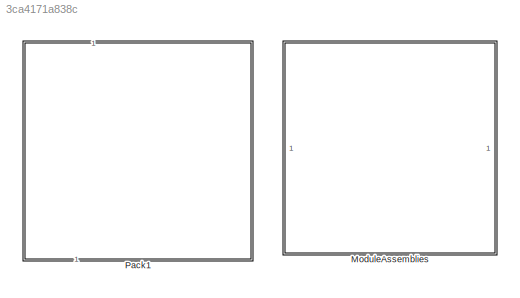
MODEL slx_3ca4171a838c
KIND library
CONFIG AbsTol = auto
CONFIG EnableMultiTasking = off
CONFIG FixedStep = auto
CONFIG MaxStep = auto
CONFIG MinStep = auto
CONFIG RelTol = 1e-3
CONFIG SampleTimeConstraint = Unconstrained
CONFIG SolverName = VariableStepAuto
CONFIG StartTime = 0.0
CONFIG StopTime = 10.0
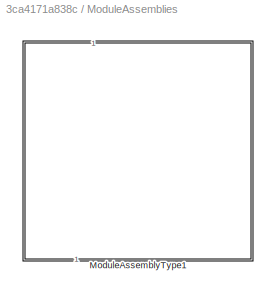
BLOCK [SubSystem] ModuleAssemblies
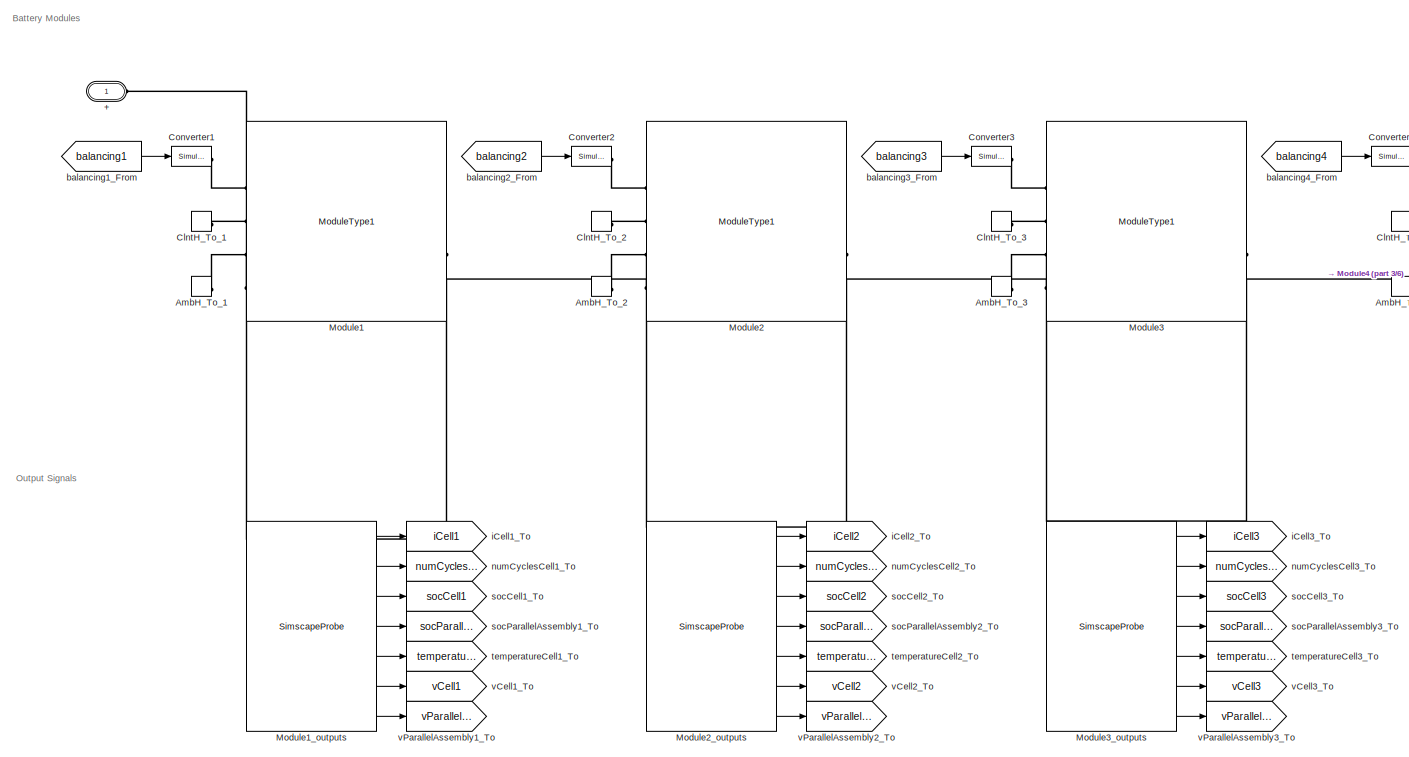
[diagram: ModuleAssemblies/ModuleAssemblyType1 - part 1/6, top left region]
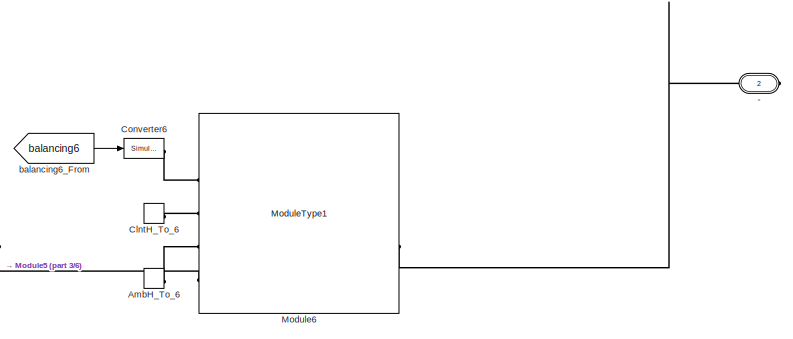
[diagram: ModuleAssemblies/ModuleAssemblyType1 - part 2/6, top right region]
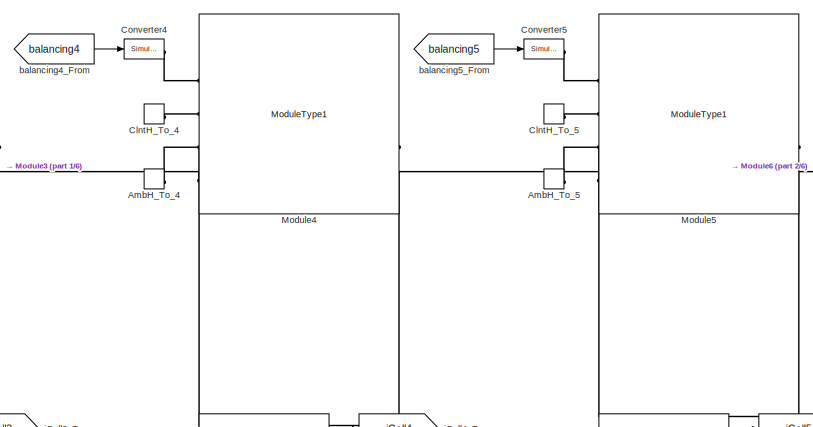
[diagram: ModuleAssemblies/ModuleAssemblyType1 - part 3/6, top center region]
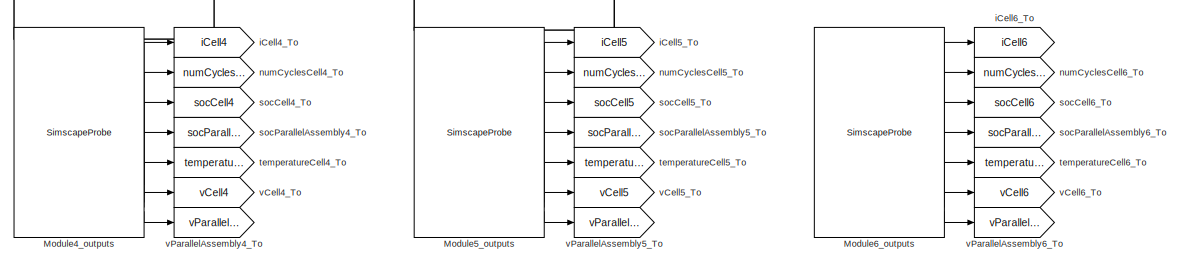
[diagram: ModuleAssemblies/ModuleAssemblyType1 - part 4/6, middle right region]
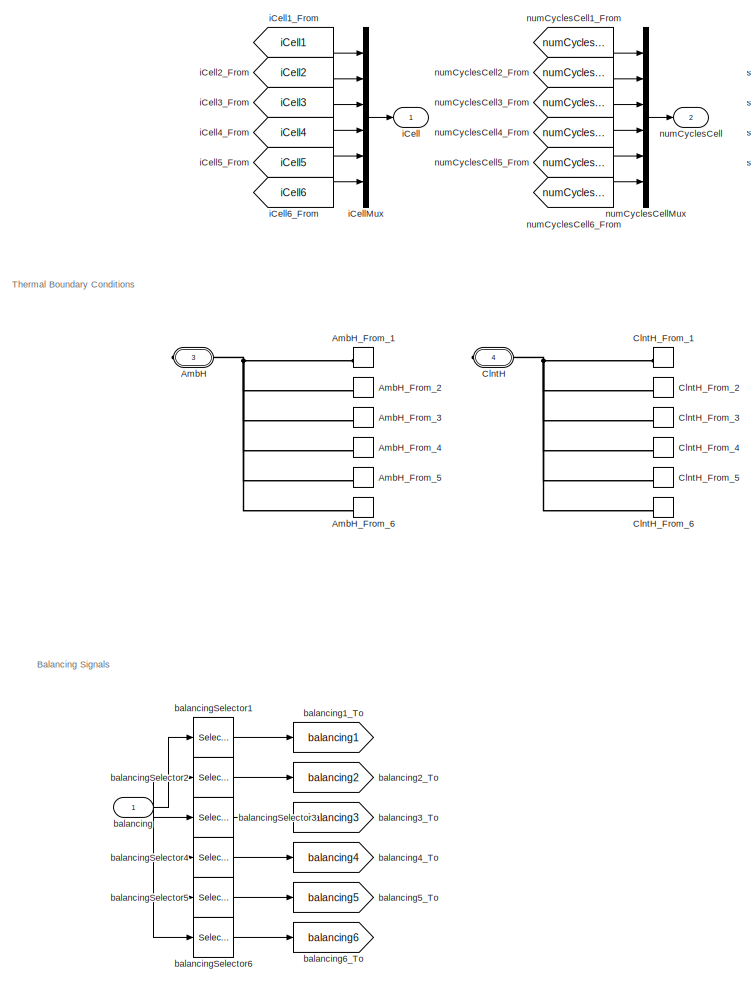
[diagram: ModuleAssemblies/ModuleAssemblyType1 - part 5/6, bottom left region]
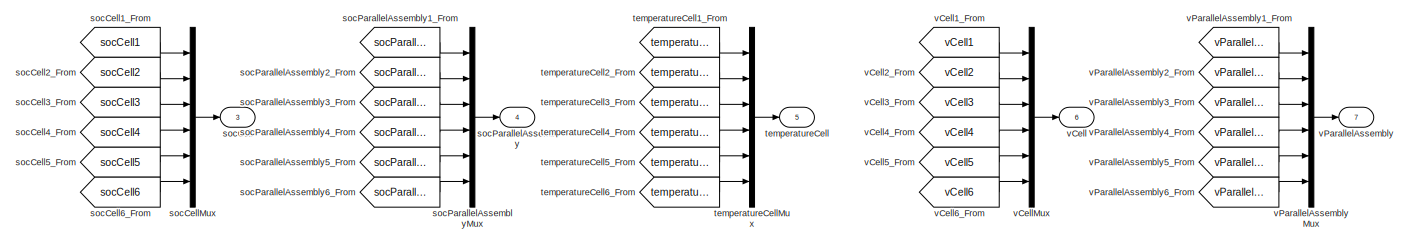
[diagram: ModuleAssemblies/ModuleAssemblyType1 - part 6/6, central region]
BLOCK [SubSystem] ModuleAssemblies/ModuleAssemblyType1
  CopyFcn = battery_builder_rtmsupport('copyfcn',gcbh);
  LoadFcn = battery_builder_rtmsupport('loadfcn',gcbh);
  PortSchema = {"entries":[{"content":{"sides":[{"content":{"connectorIds":["LConn1"]},"type":"ConnectorPlacement.EquallySpacedRectSide","uuid":"40a787f1-8ebe-41ff-9d70-768a8ef233ef"},{"content":{"connectorIds":["RConn1","RConn2","RConn3"],"side":"RIGHT"},"type":"ConnectorPlacement.EquallySpacedRectSide","uuid":"73afe2bc-4ac0-4ad9-926b-4091302672c8"},{"content":{"connectorIds":["In1"],"side":"TOP"},"type":"Conne...<+460ch>  <repeated x4 — deduplicated; at blocks: ModuleAssemblyType1, Pack1, ModuleAssembly1, ModuleAssembly2>
  PreCopyFcn = battery_builder_rtmsupport('precopyfcn',gcbh);
  PreDeleteFcn = battery_builder_rtmsupport('predeletefcn',gcbh);
BLOCK [PMIOPort] ModuleAssemblies/ModuleAssemblyType1/+
  Side = Left
BLOCK [PMIOPort] ModuleAssemblies/ModuleAssemblyType1/-
  Port = 2
  Side = Right
BLOCK [PMIOPort] ModuleAssemblies/ModuleAssemblyType1/AmbH
  ConnectionType = Connection: foundation.thermal.thermal
  Port = 3
  Side = Right
BLOCK [ConnectionLabel] ModuleAssemblies/ModuleAssemblyType1/AmbH_From_1
  Label = ambH_1
BLOCK [ConnectionLabel] ModuleAssemblies/ModuleAssemblyType1/AmbH_From_2
  Label = ambH_2
BLOCK [ConnectionLabel] ModuleAssemblies/ModuleAssemblyType1/AmbH_From_3
  Label = ambH_3
BLOCK [ConnectionLabel] ModuleAssemblies/ModuleAssemblyType1/AmbH_From_4
  Label = ambH_4
BLOCK [ConnectionLabel] ModuleAssemblies/ModuleAssemblyType1/AmbH_From_5
  Label = ambH_5
BLOCK [ConnectionLabel] ModuleAssemblies/ModuleAssemblyType1/AmbH_From_6
  Label = ambH_6
BLOCK [ConnectionLabel] ModuleAssemblies/ModuleAssemblyType1/AmbH_To_1
  Label = ambH_1
BLOCK [ConnectionLabel] ModuleAssemblies/ModuleAssemblyType1/AmbH_To_2
  Label = ambH_2
BLOCK [ConnectionLabel] ModuleAssemblies/ModuleAssemblyType1/AmbH_To_3
  Label = ambH_3
BLOCK [ConnectionLabel] ModuleAssemblies/ModuleAssemblyType1/AmbH_To_4
  Label = ambH_4
BLOCK [ConnectionLabel] ModuleAssemblies/ModuleAssemblyType1/AmbH_To_5
  Label = ambH_5
BLOCK [ConnectionLabel] ModuleAssemblies/ModuleAssemblyType1/AmbH_To_6
  Label = ambH_6
BLOCK [PMIOPort] ModuleAssemblies/ModuleAssemblyType1/ClntH
  ConnectionType = Connection: foundation.thermal.thermal
  Port = 4
  Side = Right
BLOCK [ConnectionLabel] ModuleAssemblies/ModuleAssemblyType1/ClntH_From_1
  Label = clntH_1
BLOCK [ConnectionLabel] ModuleAssemblies/ModuleAssemblyType1/ClntH_From_2
  Label = clntH_2
BLOCK [ConnectionLabel] ModuleAssemblies/ModuleAssemblyType1/ClntH_From_3
  Label = clntH_3
BLOCK [ConnectionLabel] ModuleAssemblies/ModuleAssemblyType1/ClntH_From_4
  Label = clntH_4
BLOCK [ConnectionLabel] ModuleAssemblies/ModuleAssemblyType1/ClntH_From_5
  Label = clntH_5
BLOCK [ConnectionLabel] ModuleAssemblies/ModuleAssemblyType1/ClntH_From_6
  Label = clntH_6
BLOCK [ConnectionLabel] ModuleAssemblies/ModuleAssemblyType1/ClntH_To_1
  Label = clntH_1
BLOCK [ConnectionLabel] ModuleAssemblies/ModuleAssemblyType1/ClntH_To_2
  Label = clntH_2
BLOCK [ConnectionLabel] ModuleAssemblies/ModuleAssemblyType1/ClntH_To_3
  Label = clntH_3
BLOCK [ConnectionLabel] ModuleAssemblies/ModuleAssemblyType1/ClntH_To_4
  Label = clntH_4
BLOCK [ConnectionLabel] ModuleAssemblies/ModuleAssemblyType1/ClntH_To_5
  Label = clntH_5
BLOCK [ConnectionLabel] ModuleAssemblies/ModuleAssemblyType1/ClntH_To_6
  Label = clntH_6
BLOCK [Reference] ModuleAssemblies/ModuleAssemblyType1/Converter1  REF=nesl_utility/Simulink-PS
Converter
  SourceBlock = nesl_utility/Simulink-PS\nConverter
  SourceType = Simulink-PS\nConverter
BLOCK [Reference] ModuleAssemblies/ModuleAssemblyType1/Converter2  REF=nesl_utility/Simulink-PS
Converter
  SourceBlock = nesl_utility/Simulink-PS\nConverter
  SourceType = Simulink-PS\nConverter
BLOCK [Reference] ModuleAssemblies/ModuleAssemblyType1/Converter3  REF=nesl_utility/Simulink-PS
Converter
  SourceBlock = nesl_utility/Simulink-PS\nConverter
  SourceType = Simulink-PS\nConverter
BLOCK [Reference] ModuleAssemblies/ModuleAssemblyType1/Converter4  REF=nesl_utility/Simulink-PS
Converter
  SourceBlock = nesl_utility/Simulink-PS\nConverter
  SourceType = Simulink-PS\nConverter
BLOCK [Reference] ModuleAssemblies/ModuleAssemblyType1/Converter5  REF=nesl_utility/Simulink-PS
Converter
  SourceBlock = nesl_utility/Simulink-PS\nConverter
  SourceType = Simulink-PS\nConverter
BLOCK [Reference] ModuleAssemblies/ModuleAssemblyType1/Converter6  REF=nesl_utility/Simulink-PS
Converter
  SourceBlock = nesl_utility/Simulink-PS\nConverter
  SourceType = Simulink-PS\nConverter
BLOCK [Reference] ModuleAssemblies/ModuleAssemblyType1/Module1  REF=GD_Batterymodel_NSGAII_1_lib/Modules/ModuleType1
  SourceBlock = GD_Batterymodel_NSGAII_1_lib/Modules/ModuleType1
  SourceType = ModuleType1
BLOCK [SimscapeProbe] ModuleAssemblies/ModuleAssemblyType1/Module1_outputs
  BoundBlock = 3
  Variables = {iCell, numCyclesCell, socCell, socParallelAssembly, temperatureCell, vCell, vParallelAssembly}
BLOCK [Reference] ModuleAssemblies/ModuleAssemblyType1/Module2  REF=GD_Batterymodel_NSGAII_1_lib/Modules/ModuleType1
  SourceBlock = GD_Batterymodel_NSGAII_1_lib/Modules/ModuleType1
  SourceType = ModuleType1
BLOCK [SimscapeProbe] ModuleAssemblies/ModuleAssemblyType1/Module2_outputs
  BoundBlock = 4
  Variables = {iCell, numCyclesCell, socCell, socParallelAssembly, temperatureCell, vCell, vParallelAssembly}
BLOCK [Reference] ModuleAssemblies/ModuleAssemblyType1/Module3  REF=GD_Batterymodel_NSGAII_1_lib/Modules/ModuleType1
  SourceBlock = GD_Batterymodel_NSGAII_1_lib/Modules/ModuleType1
  SourceType = ModuleType1
BLOCK [SimscapeProbe] ModuleAssemblies/ModuleAssemblyType1/Module3_outputs
  BoundBlock = 5
  Variables = {iCell, numCyclesCell, socCell, socParallelAssembly, temperatureCell, vCell, vParallelAssembly}
BLOCK [Reference] ModuleAssemblies/ModuleAssemblyType1/Module4  REF=GD_Batterymodel_NSGAII_1_lib/Modules/ModuleType1
  SourceBlock = GD_Batterymodel_NSGAII_1_lib/Modules/ModuleType1
  SourceType = ModuleType1
BLOCK [SimscapeProbe] ModuleAssemblies/ModuleAssemblyType1/Module4_outputs
  BoundBlock = 6
  Variables = {iCell, numCyclesCell, socCell, socParallelAssembly, temperatureCell, vCell, vParallelAssembly}
BLOCK [Reference] ModuleAssemblies/ModuleAssemblyType1/Module5  REF=GD_Batterymodel_NSGAII_1_lib/Modules/ModuleType1
  SourceBlock = GD_Batterymodel_NSGAII_1_lib/Modules/ModuleType1
  SourceType = ModuleType1
BLOCK [SimscapeProbe] ModuleAssemblies/ModuleAssemblyType1/Module5_outputs
  BoundBlock = 7
  Variables = {iCell, numCyclesCell, socCell, socParallelAssembly, temperatureCell, vCell, vParallelAssembly}
BLOCK [Reference] ModuleAssemblies/ModuleAssemblyType1/Module6  REF=GD_Batterymodel_NSGAII_1_lib/Modules/ModuleType1
  SourceBlock = GD_Batterymodel_NSGAII_1_lib/Modules/ModuleType1
  SourceType = ModuleType1
BLOCK [SimscapeProbe] ModuleAssemblies/ModuleAssemblyType1/Module6_outputs
  BoundBlock = 8
  Variables = {iCell, numCyclesCell, socCell, socParallelAssembly, temperatureCell, vCell, vParallelAssembly}
BLOCK [Inport] ModuleAssemblies/ModuleAssemblyType1/balancing
  PortDimensions = 108
BLOCK [From] ModuleAssemblies/ModuleAssemblyType1/balancing1_From
  GotoTag = balancing1
BLOCK [Goto] ModuleAssemblies/ModuleAssemblyType1/balancing1_To
  GotoTag = balancing1
BLOCK [From] ModuleAssemblies/ModuleAssemblyType1/balancing2_From
  GotoTag = balancing2
BLOCK [Goto] ModuleAssemblies/ModuleAssemblyType1/balancing2_To
  GotoTag = balancing2
BLOCK [From] ModuleAssemblies/ModuleAssemblyType1/balancing3_From
  GotoTag = balancing3
BLOCK [Goto] ModuleAssemblies/ModuleAssemblyType1/balancing3_To
  GotoTag = balancing3
BLOCK [From] ModuleAssemblies/ModuleAssemblyType1/balancing4_From
  GotoTag = balancing4
BLOCK [Goto] ModuleAssemblies/ModuleAssemblyType1/balancing4_To
  GotoTag = balancing4
BLOCK [From] ModuleAssemblies/ModuleAssemblyType1/balancing5_From
  GotoTag = balancing5
BLOCK [Goto] ModuleAssemblies/ModuleAssemblyType1/balancing5_To
  GotoTag = balancing5
BLOCK [From] ModuleAssemblies/ModuleAssemblyType1/balancing6_From
  GotoTag = balancing6
BLOCK [Goto] ModuleAssemblies/ModuleAssemblyType1/balancing6_To
  GotoTag = balancing6
BLOCK [Selector] ModuleAssemblies/ModuleAssemblyType1/balancingSelector1
  IndexOptions = Index vector (dialog)
  Indices = [1   2   3   4   5   6   7   8   9  10  11  12  13  14  15  16  17  18]
  InputPortWidth = 108
  OutputSizes = 1
BLOCK [Selector] ModuleAssemblies/ModuleAssemblyType1/balancingSelector2
  IndexOptions = Index vector (dialog)
  Indices = [19  20  21  22  23  24  25  26  27  28  29  30  31  32  33  34  35  36]
  InputPortWidth = 108
  OutputSizes = 1
BLOCK [Selector] ModuleAssemblies/ModuleAssemblyType1/balancingSelector3
  IndexOptions = Index vector (dialog)
  Indices = [37  38  39  40  41  42  43  44  45  46  47  48  49  50  51  52  53  54]
  InputPortWidth = 108
  OutputSizes = 1
BLOCK [Selector] ModuleAssemblies/ModuleAssemblyType1/balancingSelector4
  IndexOptions = Index vector (dialog)
  Indices = [55  56  57  58  59  60  61  62  63  64  65  66  67  68  69  70  71  72]
  InputPortWidth = 108
  OutputSizes = 1
BLOCK [Selector] ModuleAssemblies/ModuleAssemblyType1/balancingSelector5
  IndexOptions = Index vector (dialog)
  Indices = [73  74  75  76  77  78  79  80  81  82  83  84  85  86  87  88  89  90]
  InputPortWidth = 108
  OutputSizes = 1
BLOCK [Selector] ModuleAssemblies/ModuleAssemblyType1/balancingSelector6
  IndexOptions = Index vector (dialog)
  Indices = [91   92   93   94   95   96   97   98   99  100  101  102  103  104  105  106  107  108]
  InputPortWidth = 108
  OutputSizes = 1
BLOCK [Outport] ModuleAssemblies/ModuleAssemblyType1/iCell
BLOCK [From] ModuleAssemblies/ModuleAssemblyType1/iCell1_From
  GotoTag = iCell1
BLOCK [Goto] ModuleAssemblies/ModuleAssemblyType1/iCell1_To
  GotoTag = iCell1
BLOCK [From] ModuleAssemblies/ModuleAssemblyType1/iCell2_From
  GotoTag = iCell2
BLOCK [Goto] ModuleAssemblies/ModuleAssemblyType1/iCell2_To
  GotoTag = iCell2
BLOCK [From] ModuleAssemblies/ModuleAssemblyType1/iCell3_From
  GotoTag = iCell3
BLOCK [Goto] ModuleAssemblies/ModuleAssemblyType1/iCell3_To
  GotoTag = iCell3
BLOCK [From] ModuleAssemblies/ModuleAssemblyType1/iCell4_From
  GotoTag = iCell4
BLOCK [Goto] ModuleAssemblies/ModuleAssemblyType1/iCell4_To
  GotoTag = iCell4
BLOCK [From] ModuleAssemblies/ModuleAssemblyType1/iCell5_From
  GotoTag = iCell5
BLOCK [Goto] ModuleAssemblies/ModuleAssemblyType1/iCell5_To
  GotoTag = iCell5
BLOCK [From] ModuleAssemblies/ModuleAssemblyType1/iCell6_From
  GotoTag = iCell6
BLOCK [Goto] ModuleAssemblies/ModuleAssemblyType1/iCell6_To
  GotoTag = iCell6
BLOCK [Mux] ModuleAssemblies/ModuleAssemblyType1/iCellMux
  DisplayOption = bar
  Inputs = 6
BLOCK [Outport] ModuleAssemblies/ModuleAssemblyType1/numCyclesCell
  Port = 2
BLOCK [From] ModuleAssemblies/ModuleAssemblyType1/numCyclesCell1_From
  GotoTag = numCyclesCell1
BLOCK [Goto] ModuleAssemblies/ModuleAssemblyType1/numCyclesCell1_To
  GotoTag = numCyclesCell1
BLOCK [From] ModuleAssemblies/ModuleAssemblyType1/numCyclesCell2_From
  GotoTag = numCyclesCell2
BLOCK [Goto] ModuleAssemblies/ModuleAssemblyType1/numCyclesCell2_To
  GotoTag = numCyclesCell2
BLOCK [From] ModuleAssemblies/ModuleAssemblyType1/numCyclesCell3_From
  GotoTag = numCyclesCell3
BLOCK [Goto] ModuleAssemblies/ModuleAssemblyType1/numCyclesCell3_To
  GotoTag = numCyclesCell3
BLOCK [From] ModuleAssemblies/ModuleAssemblyType1/numCyclesCell4_From
  GotoTag = numCyclesCell4
BLOCK [Goto] ModuleAssemblies/ModuleAssemblyType1/numCyclesCell4_To
  GotoTag = numCyclesCell4
BLOCK [From] ModuleAssemblies/ModuleAssemblyType1/numCyclesCell5_From
  GotoTag = numCyclesCell5
BLOCK [Goto] ModuleAssemblies/ModuleAssemblyType1/numCyclesCell5_To
  GotoTag = numCyclesCell5
BLOCK [From] ModuleAssemblies/ModuleAssemblyType1/numCyclesCell6_From
  GotoTag = numCyclesCell6
BLOCK [Goto] ModuleAssemblies/ModuleAssemblyType1/numCyclesCell6_To
  GotoTag = numCyclesCell6
BLOCK [Mux] ModuleAssemblies/ModuleAssemblyType1/numCyclesCellMux
  DisplayOption = bar
  Inputs = 6
BLOCK [Outport] ModuleAssemblies/ModuleAssemblyType1/socCell
  Port = 3
BLOCK [From] ModuleAssemblies/ModuleAssemblyType1/socCell1_From
  GotoTag = socCell1
BLOCK [Goto] ModuleAssemblies/ModuleAssemblyType1/socCell1_To
  GotoTag = socCell1
BLOCK [From] ModuleAssemblies/ModuleAssemblyType1/socCell2_From
  GotoTag = socCell2
BLOCK [Goto] ModuleAssemblies/ModuleAssemblyType1/socCell2_To
  GotoTag = socCell2
BLOCK [From] ModuleAssemblies/ModuleAssemblyType1/socCell3_From
  GotoTag = socCell3
BLOCK [Goto] ModuleAssemblies/ModuleAssemblyType1/socCell3_To
  GotoTag = socCell3
BLOCK [From] ModuleAssemblies/ModuleAssemblyType1/socCell4_From
  GotoTag = socCell4
BLOCK [Goto] ModuleAssemblies/ModuleAssemblyType1/socCell4_To
  GotoTag = socCell4
BLOCK [From] ModuleAssemblies/ModuleAssemblyType1/socCell5_From
  GotoTag = socCell5
BLOCK [Goto] ModuleAssemblies/ModuleAssemblyType1/socCell5_To
  GotoTag = socCell5
BLOCK [From] ModuleAssemblies/ModuleAssemblyType1/socCell6_From
  GotoTag = socCell6
BLOCK [Goto] ModuleAssemblies/ModuleAssemblyType1/socCell6_To
  GotoTag = socCell6
BLOCK [Mux] ModuleAssemblies/ModuleAssemblyType1/socCellMux
  DisplayOption = bar
  Inputs = 6
BLOCK [Outport] ModuleAssemblies/ModuleAssemblyType1/socParallelAssembly
  Port = 4
BLOCK [From] ModuleAssemblies/ModuleAssemblyType1/socParallelAssembly1_From
  GotoTag = socParallelAssembly1
BLOCK [Goto] ModuleAssemblies/ModuleAssemblyType1/socParallelAssembly1_To
  GotoTag = socParallelAssembly1
BLOCK [From] ModuleAssemblies/ModuleAssemblyType1/socParallelAssembly2_From
  GotoTag = socParallelAssembly2
BLOCK [Goto] ModuleAssemblies/ModuleAssemblyType1/socParallelAssembly2_To
  GotoTag = socParallelAssembly2
BLOCK [From] ModuleAssemblies/ModuleAssemblyType1/socParallelAssembly3_From
  GotoTag = socParallelAssembly3
BLOCK [Goto] ModuleAssemblies/ModuleAssemblyType1/socParallelAssembly3_To
  GotoTag = socParallelAssembly3
BLOCK [From] ModuleAssemblies/ModuleAssemblyType1/socParallelAssembly4_From
  GotoTag = socParallelAssembly4
BLOCK [Goto] ModuleAssemblies/ModuleAssemblyType1/socParallelAssembly4_To
  GotoTag = socParallelAssembly4
BLOCK [From] ModuleAssemblies/ModuleAssemblyType1/socParallelAssembly5_From
  GotoTag = socParallelAssembly5
BLOCK [Goto] ModuleAssemblies/ModuleAssemblyType1/socParallelAssembly5_To
  GotoTag = socParallelAssembly5
BLOCK [From] ModuleAssemblies/ModuleAssemblyType1/socParallelAssembly6_From
  GotoTag = socParallelAssembly6
BLOCK [Goto] ModuleAssemblies/ModuleAssemblyType1/socParallelAssembly6_To
  GotoTag = socParallelAssembly6
BLOCK [Mux] ModuleAssemblies/ModuleAssemblyType1/socParallelAssemblyMux
  DisplayOption = bar
  Inputs = 6
BLOCK [Outport] ModuleAssemblies/ModuleAssemblyType1/temperatureCell
  Port = 5
BLOCK [From] ModuleAssemblies/ModuleAssemblyType1/temperatureCell1_From
  GotoTag = temperatureCell1
BLOCK [Goto] ModuleAssemblies/ModuleAssemblyType1/temperatureCell1_To
  GotoTag = temperatureCell1
BLOCK [From] ModuleAssemblies/ModuleAssemblyType1/temperatureCell2_From
  GotoTag = temperatureCell2
BLOCK [Goto] ModuleAssemblies/ModuleAssemblyType1/temperatureCell2_To
  GotoTag = temperatureCell2
BLOCK [From] ModuleAssemblies/ModuleAssemblyType1/temperatureCell3_From
  GotoTag = temperatureCell3
BLOCK [Goto] ModuleAssemblies/ModuleAssemblyType1/temperatureCell3_To
  GotoTag = temperatureCell3
BLOCK [From] ModuleAssemblies/ModuleAssemblyType1/temperatureCell4_From
  GotoTag = temperatureCell4
BLOCK [Goto] ModuleAssemblies/ModuleAssemblyType1/temperatureCell4_To
  GotoTag = temperatureCell4
BLOCK [From] ModuleAssemblies/ModuleAssemblyType1/temperatureCell5_From
  GotoTag = temperatureCell5
BLOCK [Goto] ModuleAssemblies/ModuleAssemblyType1/temperatureCell5_To
  GotoTag = temperatureCell5
BLOCK [From] ModuleAssemblies/ModuleAssemblyType1/temperatureCell6_From
  GotoTag = temperatureCell6
BLOCK [Goto] ModuleAssemblies/ModuleAssemblyType1/temperatureCell6_To
  GotoTag = temperatureCell6
BLOCK [Mux] ModuleAssemblies/ModuleAssemblyType1/temperatureCellMux
  DisplayOption = bar
  Inputs = 6
BLOCK [Outport] ModuleAssemblies/ModuleAssemblyType1/vCell
  Port = 6
BLOCK [From] ModuleAssemblies/ModuleAssemblyType1/vCell1_From
  GotoTag = vCell1
BLOCK [Goto] ModuleAssemblies/ModuleAssemblyType1/vCell1_To
  GotoTag = vCell1
BLOCK [From] ModuleAssemblies/ModuleAssemblyType1/vCell2_From
  GotoTag = vCell2
BLOCK [Goto] ModuleAssemblies/ModuleAssemblyType1/vCell2_To
  GotoTag = vCell2
BLOCK [From] ModuleAssemblies/ModuleAssemblyType1/vCell3_From
  GotoTag = vCell3
BLOCK [Goto] ModuleAssemblies/ModuleAssemblyType1/vCell3_To
  GotoTag = vCell3
BLOCK [From] ModuleAssemblies/ModuleAssemblyType1/vCell4_From
  GotoTag = vCell4
BLOCK [Goto] ModuleAssemblies/ModuleAssemblyType1/vCell4_To
  GotoTag = vCell4
BLOCK [From] ModuleAssemblies/ModuleAssemblyType1/vCell5_From
  GotoTag = vCell5
BLOCK [Goto] ModuleAssemblies/ModuleAssemblyType1/vCell5_To
  GotoTag = vCell5
BLOCK [From] ModuleAssemblies/ModuleAssemblyType1/vCell6_From
  GotoTag = vCell6
BLOCK [Goto] ModuleAssemblies/ModuleAssemblyType1/vCell6_To
  GotoTag = vCell6
BLOCK [Mux] ModuleAssemblies/ModuleAssemblyType1/vCellMux
  DisplayOption = bar
  Inputs = 6
BLOCK [Outport] ModuleAssemblies/ModuleAssemblyType1/vParallelAssembly
  Port = 7
BLOCK [From] ModuleAssemblies/ModuleAssemblyType1/vParallelAssembly1_From
  GotoTag = vParallelAssembly1
BLOCK [Goto] ModuleAssemblies/ModuleAssemblyType1/vParallelAssembly1_To
  GotoTag = vParallelAssembly1
BLOCK [From] ModuleAssemblies/ModuleAssemblyType1/vParallelAssembly2_From
  GotoTag = vParallelAssembly2
BLOCK [Goto] ModuleAssemblies/ModuleAssemblyType1/vParallelAssembly2_To
  GotoTag = vParallelAssembly2
BLOCK [From] ModuleAssemblies/ModuleAssemblyType1/vParallelAssembly3_From
  GotoTag = vParallelAssembly3
BLOCK [Goto] ModuleAssemblies/ModuleAssemblyType1/vParallelAssembly3_To
  GotoTag = vParallelAssembly3
BLOCK [From] ModuleAssemblies/ModuleAssemblyType1/vParallelAssembly4_From
  GotoTag = vParallelAssembly4
BLOCK [Goto] ModuleAssemblies/ModuleAssemblyType1/vParallelAssembly4_To
  GotoTag = vParallelAssembly4
BLOCK [From] ModuleAssemblies/ModuleAssemblyType1/vParallelAssembly5_From
  GotoTag = vParallelAssembly5
BLOCK [Goto] ModuleAssemblies/ModuleAssemblyType1/vParallelAssembly5_To
  GotoTag = vParallelAssembly5
BLOCK [From] ModuleAssemblies/ModuleAssemblyType1/vParallelAssembly6_From
  GotoTag = vParallelAssembly6
BLOCK [Goto] ModuleAssemblies/ModuleAssemblyType1/vParallelAssembly6_To
  GotoTag = vParallelAssembly6
BLOCK [Mux] ModuleAssemblies/ModuleAssemblyType1/vParallelAssemblyMux
  DisplayOption = bar
  Inputs = 6
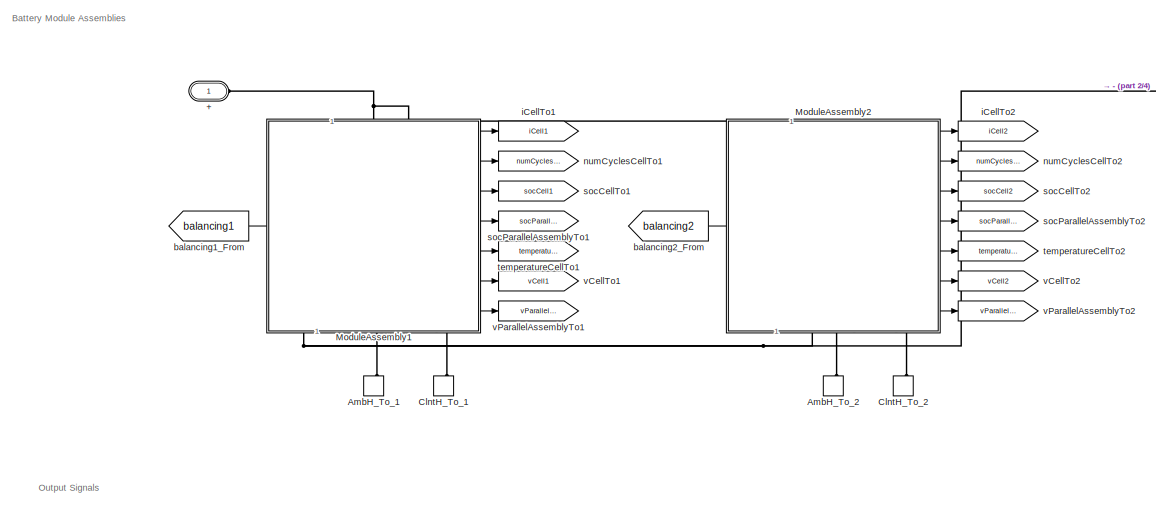
[diagram: Pack1 - part 1/4, top left region]
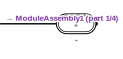
[diagram: Pack1 - part 2/4, top right region]
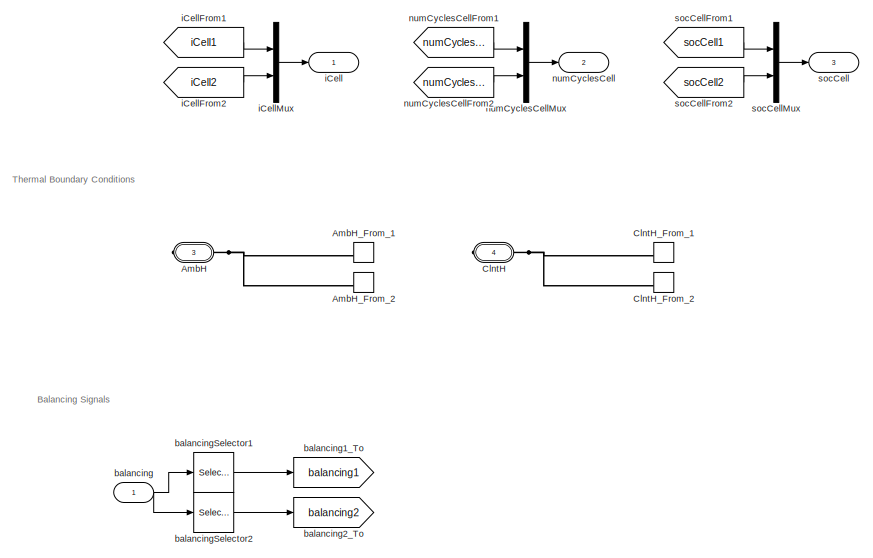
[diagram: Pack1 - part 3/4, bottom left region]
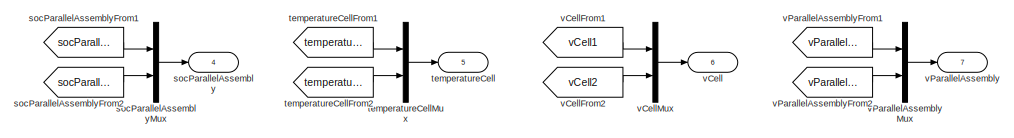
[diagram: Pack1 - part 4/4, middle right region]
BLOCK [SubSystem] Pack1
  CopyFcn = battery_builder_rtmsupport('copyfcn',gcbh);
  LoadFcn = battery_builder_rtmsupport('loadfcn',gcbh);
  PreCopyFcn = battery_builder_rtmsupport('precopyfcn',gcbh);
  PreDeleteFcn = battery_builder_rtmsupport('predeletefcn',gcbh);
BLOCK [PMIOPort] Pack1/+
  Side = Left
BLOCK [PMIOPort] Pack1/-
  Port = 2
  Side = Right
BLOCK [PMIOPort] Pack1/AmbH
  ConnectionType = Connection: foundation.thermal.thermal
  Port = 3
  Side = Right
BLOCK [ConnectionLabel] Pack1/AmbH_From_1
  Label = ambH_1
BLOCK [ConnectionLabel] Pack1/AmbH_From_2
  Label = ambH_2
BLOCK [ConnectionLabel] Pack1/AmbH_To_1
  Label = ambH_1
  NameLocation = right
BLOCK [ConnectionLabel] Pack1/AmbH_To_2
  Label = ambH_2
  NameLocation = right
BLOCK [PMIOPort] Pack1/ClntH
  ConnectionType = Connection: foundation.thermal.thermal
  Port = 4
  Side = Right
BLOCK [ConnectionLabel] Pack1/ClntH_From_1
  Label = clntH_1
BLOCK [ConnectionLabel] Pack1/ClntH_From_2
  Label = clntH_2
BLOCK [ConnectionLabel] Pack1/ClntH_To_1
  Label = clntH_1
  NameLocation = right
BLOCK [ConnectionLabel] Pack1/ClntH_To_2
  Label = clntH_2
  NameLocation = right
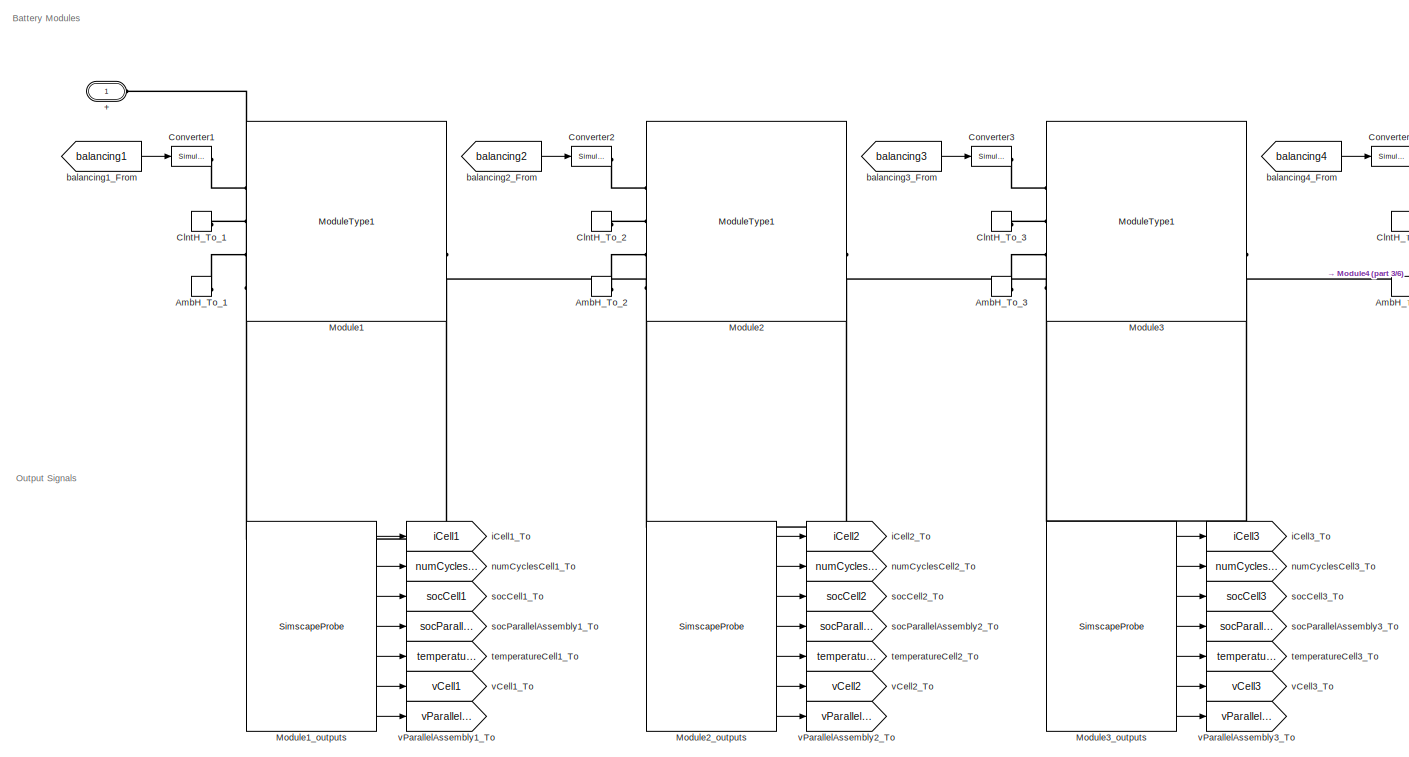
[diagram: Pack1/ModuleAssembly1 - part 1/6, top left region]
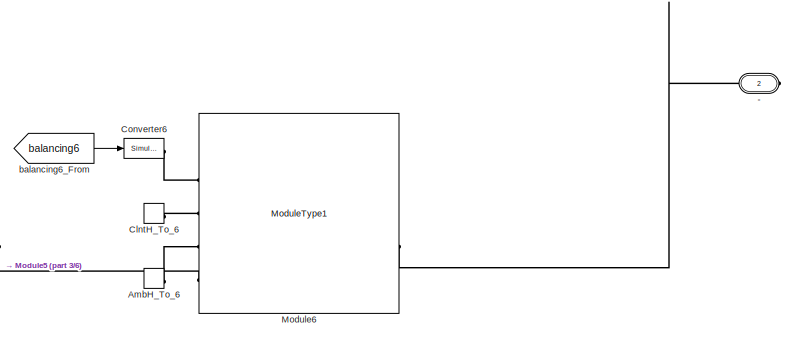
[diagram: Pack1/ModuleAssembly1 - part 2/6, top right region]
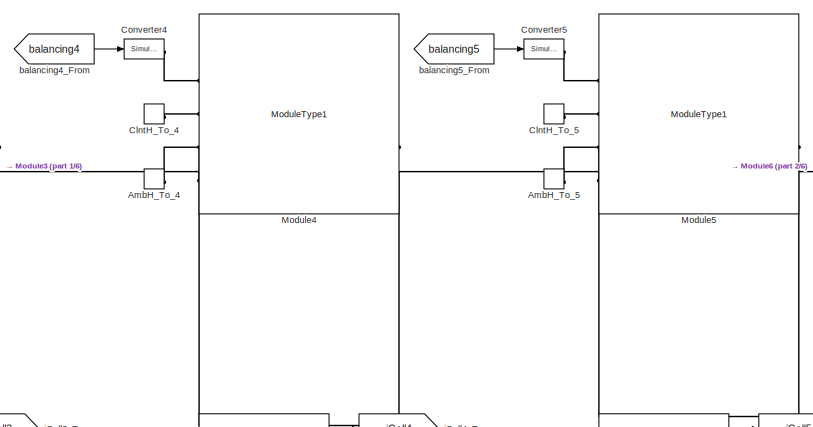
[diagram: Pack1/ModuleAssembly1 - part 3/6, top center region]
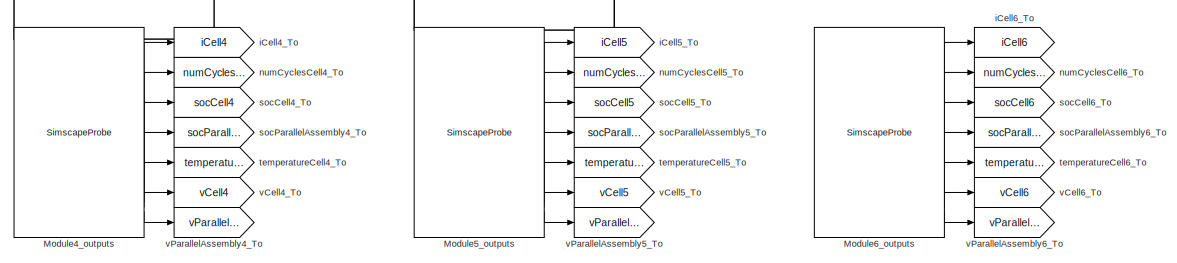
[diagram: Pack1/ModuleAssembly1 - part 4/6, middle right region]
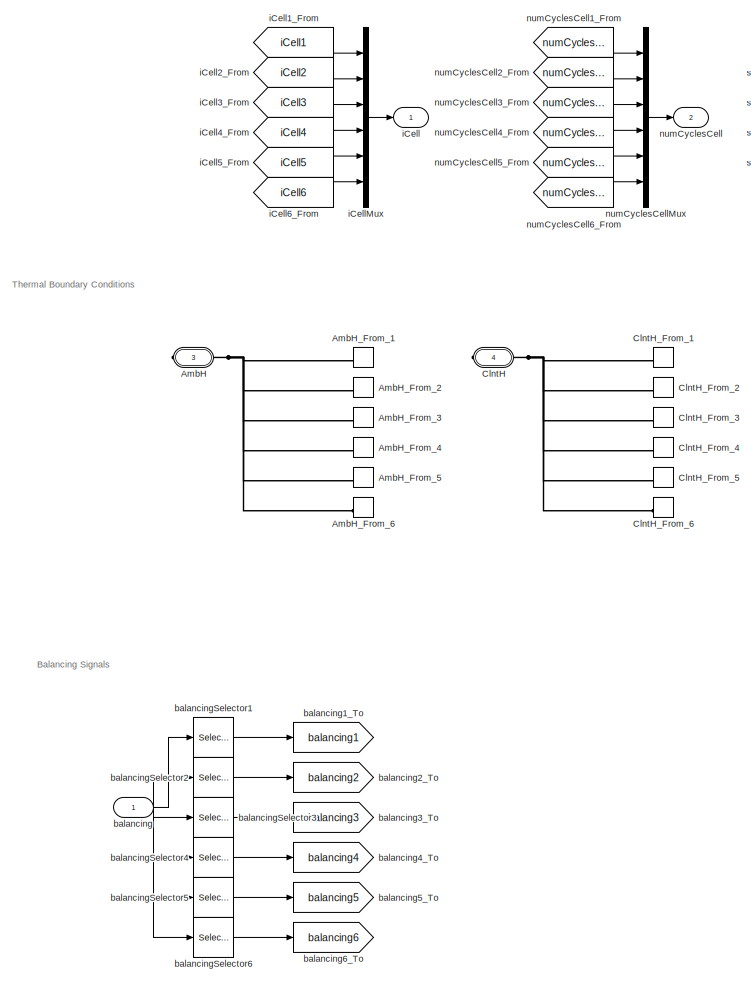
[diagram: Pack1/ModuleAssembly1 - part 5/6, bottom left region]
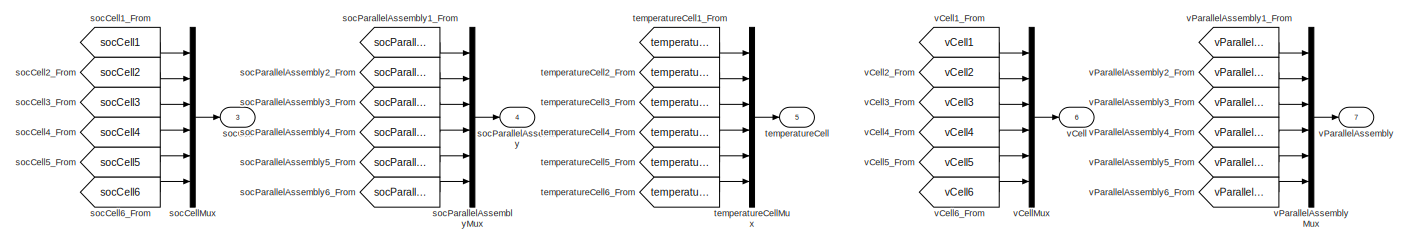
[diagram: Pack1/ModuleAssembly1 - part 6/6, central region]
BLOCK [SubSystem] Pack1/ModuleAssembly1
  CopyFcn = battery_builder_rtmsupport('copyfcn',gcbh);
  LoadFcn = battery_builder_rtmsupport('loadfcn',gcbh);
  PreCopyFcn = battery_builder_rtmsupport('precopyfcn',gcbh);
  PreDeleteFcn = battery_builder_rtmsupport('predeletefcn',gcbh);
BLOCK [PMIOPort] Pack1/ModuleAssembly1/+
  Side = Left
BLOCK [PMIOPort] Pack1/ModuleAssembly1/-
  Port = 2
  Side = Right
BLOCK [PMIOPort] Pack1/ModuleAssembly1/AmbH
  ConnectionType = Connection: foundation.thermal.thermal
  Port = 3
  Side = Right
BLOCK [ConnectionLabel] Pack1/ModuleAssembly1/AmbH_From_1
  Label = ambH_1
BLOCK [ConnectionLabel] Pack1/ModuleAssembly1/AmbH_From_2
  Label = ambH_2
BLOCK [ConnectionLabel] Pack1/ModuleAssembly1/AmbH_From_3
  Label = ambH_3
BLOCK [ConnectionLabel] Pack1/ModuleAssembly1/AmbH_From_4
  Label = ambH_4
BLOCK [ConnectionLabel] Pack1/ModuleAssembly1/AmbH_From_5
  Label = ambH_5
BLOCK [ConnectionLabel] Pack1/ModuleAssembly1/AmbH_From_6
  Label = ambH_6
BLOCK [ConnectionLabel] Pack1/ModuleAssembly1/AmbH_To_1
  Label = ambH_1
BLOCK [ConnectionLabel] Pack1/ModuleAssembly1/AmbH_To_2
  Label = ambH_2
BLOCK [ConnectionLabel] Pack1/ModuleAssembly1/AmbH_To_3
  Label = ambH_3
BLOCK [ConnectionLabel] Pack1/ModuleAssembly1/AmbH_To_4
  Label = ambH_4
BLOCK [ConnectionLabel] Pack1/ModuleAssembly1/AmbH_To_5
  Label = ambH_5
BLOCK [ConnectionLabel] Pack1/ModuleAssembly1/AmbH_To_6
  Label = ambH_6
BLOCK [PMIOPort] Pack1/ModuleAssembly1/ClntH
  ConnectionType = Connection: foundation.thermal.thermal
  Port = 4
  Side = Right
BLOCK [ConnectionLabel] Pack1/ModuleAssembly1/ClntH_From_1
  Label = clntH_1
BLOCK [ConnectionLabel] Pack1/ModuleAssembly1/ClntH_From_2
  Label = clntH_2
BLOCK [ConnectionLabel] Pack1/ModuleAssembly1/ClntH_From_3
  Label = clntH_3
BLOCK [ConnectionLabel] Pack1/ModuleAssembly1/ClntH_From_4
  Label = clntH_4
BLOCK [ConnectionLabel] Pack1/ModuleAssembly1/ClntH_From_5
  Label = clntH_5
BLOCK [ConnectionLabel] Pack1/ModuleAssembly1/ClntH_From_6
  Label = clntH_6
BLOCK [ConnectionLabel] Pack1/ModuleAssembly1/ClntH_To_1
  Label = clntH_1
BLOCK [ConnectionLabel] Pack1/ModuleAssembly1/ClntH_To_2
  Label = clntH_2
BLOCK [ConnectionLabel] Pack1/ModuleAssembly1/ClntH_To_3
  Label = clntH_3
BLOCK [ConnectionLabel] Pack1/ModuleAssembly1/ClntH_To_4
  Label = clntH_4
BLOCK [ConnectionLabel] Pack1/ModuleAssembly1/ClntH_To_5
  Label = clntH_5
BLOCK [ConnectionLabel] Pack1/ModuleAssembly1/ClntH_To_6
  Label = clntH_6
BLOCK [Reference] Pack1/ModuleAssembly1/Converter1  REF=nesl_utility/Simulink-PS
Converter
  SourceBlock = nesl_utility/Simulink-PS\nConverter
  SourceType = Simulink-PS\nConverter
BLOCK [Reference] Pack1/ModuleAssembly1/Converter2  REF=nesl_utility/Simulink-PS
Converter
  SourceBlock = nesl_utility/Simulink-PS\nConverter
  SourceType = Simulink-PS\nConverter
BLOCK [Reference] Pack1/ModuleAssembly1/Converter3  REF=nesl_utility/Simulink-PS
Converter
  SourceBlock = nesl_utility/Simulink-PS\nConverter
  SourceType = Simulink-PS\nConverter
BLOCK [Reference] Pack1/ModuleAssembly1/Converter4  REF=nesl_utility/Simulink-PS
Converter
  SourceBlock = nesl_utility/Simulink-PS\nConverter
  SourceType = Simulink-PS\nConverter
BLOCK [Reference] Pack1/ModuleAssembly1/Converter5  REF=nesl_utility/Simulink-PS
Converter
  SourceBlock = nesl_utility/Simulink-PS\nConverter
  SourceType = Simulink-PS\nConverter
BLOCK [Reference] Pack1/ModuleAssembly1/Converter6  REF=nesl_utility/Simulink-PS
Converter
  SourceBlock = nesl_utility/Simulink-PS\nConverter
  SourceType = Simulink-PS\nConverter
BLOCK [Reference] Pack1/ModuleAssembly1/Module1  REF=GD_Batterymodel_NSGAII_1_lib/Modules/ModuleType1
  SourceBlock = GD_Batterymodel_NSGAII_1_lib/Modules/ModuleType1
  SourceType = ModuleType1
BLOCK [SimscapeProbe] Pack1/ModuleAssembly1/Module1_outputs
  BoundBlock = 203
  Variables = {iCell, numCyclesCell, socCell, socParallelAssembly, temperatureCell, vCell, vParallelAssembly}
BLOCK [Reference] Pack1/ModuleAssembly1/Module2  REF=GD_Batterymodel_NSGAII_1_lib/Modules/ModuleType1
  SourceBlock = GD_Batterymodel_NSGAII_1_lib/Modules/ModuleType1
  SourceType = ModuleType1
BLOCK [SimscapeProbe] Pack1/ModuleAssembly1/Module2_outputs
  BoundBlock = 205
  Variables = {iCell, numCyclesCell, socCell, socParallelAssembly, temperatureCell, vCell, vParallelAssembly}
BLOCK [Reference] Pack1/ModuleAssembly1/Module3  REF=GD_Batterymodel_NSGAII_1_lib/Modules/ModuleType1
  SourceBlock = GD_Batterymodel_NSGAII_1_lib/Modules/ModuleType1
  SourceType = ModuleType1
BLOCK [SimscapeProbe] Pack1/ModuleAssembly1/Module3_outputs
  BoundBlock = 207
  Variables = {iCell, numCyclesCell, socCell, socParallelAssembly, temperatureCell, vCell, vParallelAssembly}
BLOCK [Reference] Pack1/ModuleAssembly1/Module4  REF=GD_Batterymodel_NSGAII_1_lib/Modules/ModuleType1
  SourceBlock = GD_Batterymodel_NSGAII_1_lib/Modules/ModuleType1
  SourceType = ModuleType1
BLOCK [SimscapeProbe] Pack1/ModuleAssembly1/Module4_outputs
  BoundBlock = 209
  Variables = {iCell, numCyclesCell, socCell, socParallelAssembly, temperatureCell, vCell, vParallelAssembly}
BLOCK [Reference] Pack1/ModuleAssembly1/Module5  REF=GD_Batterymodel_NSGAII_1_lib/Modules/ModuleType1
  SourceBlock = GD_Batterymodel_NSGAII_1_lib/Modules/ModuleType1
  SourceType = ModuleType1
BLOCK [SimscapeProbe] Pack1/ModuleAssembly1/Module5_outputs
  BoundBlock = 211
  Variables = {iCell, numCyclesCell, socCell, socParallelAssembly, temperatureCell, vCell, vParallelAssembly}
BLOCK [Reference] Pack1/ModuleAssembly1/Module6  REF=GD_Batterymodel_NSGAII_1_lib/Modules/ModuleType1
  SourceBlock = GD_Batterymodel_NSGAII_1_lib/Modules/ModuleType1
  SourceType = ModuleType1
BLOCK [SimscapeProbe] Pack1/ModuleAssembly1/Module6_outputs
  BoundBlock = 213
  Variables = {iCell, numCyclesCell, socCell, socParallelAssembly, temperatureCell, vCell, vParallelAssembly}
BLOCK [Inport] Pack1/ModuleAssembly1/balancing
  PortDimensions = 108
BLOCK [From] Pack1/ModuleAssembly1/balancing1_From
  GotoTag = balancing1
BLOCK [Goto] Pack1/ModuleAssembly1/balancing1_To
  GotoTag = balancing1
BLOCK [From] Pack1/ModuleAssembly1/balancing2_From
  GotoTag = balancing2
BLOCK [Goto] Pack1/ModuleAssembly1/balancing2_To
  GotoTag = balancing2
BLOCK [From] Pack1/ModuleAssembly1/balancing3_From
  GotoTag = balancing3
BLOCK [Goto] Pack1/ModuleAssembly1/balancing3_To
  GotoTag = balancing3
BLOCK [From] Pack1/ModuleAssembly1/balancing4_From
  GotoTag = balancing4
BLOCK [Goto] Pack1/ModuleAssembly1/balancing4_To
  GotoTag = balancing4
BLOCK [From] Pack1/ModuleAssembly1/balancing5_From
  GotoTag = balancing5
BLOCK [Goto] Pack1/ModuleAssembly1/balancing5_To
  GotoTag = balancing5
BLOCK [From] Pack1/ModuleAssembly1/balancing6_From
  GotoTag = balancing6
BLOCK [Goto] Pack1/ModuleAssembly1/balancing6_To
  GotoTag = balancing6
BLOCK [Selector] Pack1/ModuleAssembly1/balancingSelector1
  IndexOptions = Index vector (dialog)
  Indices = [1   2   3   4   5   6   7   8   9  10  11  12  13  14  15  16  17  18]
  InputPortWidth = 108
  OutputSizes = 1
BLOCK [Selector] Pack1/ModuleAssembly1/balancingSelector2
  IndexOptions = Index vector (dialog)
  Indices = [19  20  21  22  23  24  25  26  27  28  29  30  31  32  33  34  35  36]
  InputPortWidth = 108
  OutputSizes = 1
BLOCK [Selector] Pack1/ModuleAssembly1/balancingSelector3
  IndexOptions = Index vector (dialog)
  Indices = [37  38  39  40  41  42  43  44  45  46  47  48  49  50  51  52  53  54]
  InputPortWidth = 108
  OutputSizes = 1
BLOCK [Selector] Pack1/ModuleAssembly1/balancingSelector4
  IndexOptions = Index vector (dialog)
  Indices = [55  56  57  58  59  60  61  62  63  64  65  66  67  68  69  70  71  72]
  InputPortWidth = 108
  OutputSizes = 1
BLOCK [Selector] Pack1/ModuleAssembly1/balancingSelector5
  IndexOptions = Index vector (dialog)
  Indices = [73  74  75  76  77  78  79  80  81  82  83  84  85  86  87  88  89  90]
  InputPortWidth = 108
  OutputSizes = 1
BLOCK [Selector] Pack1/ModuleAssembly1/balancingSelector6
  IndexOptions = Index vector (dialog)
  Indices = [91   92   93   94   95   96   97   98   99  100  101  102  103  104  105  106  107  108]
  InputPortWidth = 108
  OutputSizes = 1
BLOCK [Outport] Pack1/ModuleAssembly1/iCell
BLOCK [From] Pack1/ModuleAssembly1/iCell1_From
  GotoTag = iCell1
BLOCK [Goto] Pack1/ModuleAssembly1/iCell1_To
  GotoTag = iCell1
BLOCK [From] Pack1/ModuleAssembly1/iCell2_From
  GotoTag = iCell2
BLOCK [Goto] Pack1/ModuleAssembly1/iCell2_To
  GotoTag = iCell2
BLOCK [From] Pack1/ModuleAssembly1/iCell3_From
  GotoTag = iCell3
BLOCK [Goto] Pack1/ModuleAssembly1/iCell3_To
  GotoTag = iCell3
BLOCK [From] Pack1/ModuleAssembly1/iCell4_From
  GotoTag = iCell4
BLOCK [Goto] Pack1/ModuleAssembly1/iCell4_To
  GotoTag = iCell4
BLOCK [From] Pack1/ModuleAssembly1/iCell5_From
  GotoTag = iCell5
BLOCK [Goto] Pack1/ModuleAssembly1/iCell5_To
  GotoTag = iCell5
BLOCK [From] Pack1/ModuleAssembly1/iCell6_From
  GotoTag = iCell6
BLOCK [Goto] Pack1/ModuleAssembly1/iCell6_To
  GotoTag = iCell6
BLOCK [Mux] Pack1/ModuleAssembly1/iCellMux
  DisplayOption = bar
  Inputs = 6
BLOCK [Outport] Pack1/ModuleAssembly1/numCyclesCell
  Port = 2
BLOCK [From] Pack1/ModuleAssembly1/numCyclesCell1_From
  GotoTag = numCyclesCell1
BLOCK [Goto] Pack1/ModuleAssembly1/numCyclesCell1_To
  GotoTag = numCyclesCell1
BLOCK [From] Pack1/ModuleAssembly1/numCyclesCell2_From
  GotoTag = numCyclesCell2
BLOCK [Goto] Pack1/ModuleAssembly1/numCyclesCell2_To
  GotoTag = numCyclesCell2
BLOCK [From] Pack1/ModuleAssembly1/numCyclesCell3_From
  GotoTag = numCyclesCell3
BLOCK [Goto] Pack1/ModuleAssembly1/numCyclesCell3_To
  GotoTag = numCyclesCell3
BLOCK [From] Pack1/ModuleAssembly1/numCyclesCell4_From
  GotoTag = numCyclesCell4
BLOCK [Goto] Pack1/ModuleAssembly1/numCyclesCell4_To
  GotoTag = numCyclesCell4
BLOCK [From] Pack1/ModuleAssembly1/numCyclesCell5_From
  GotoTag = numCyclesCell5
BLOCK [Goto] Pack1/ModuleAssembly1/numCyclesCell5_To
  GotoTag = numCyclesCell5
BLOCK [From] Pack1/ModuleAssembly1/numCyclesCell6_From
  GotoTag = numCyclesCell6
BLOCK [Goto] Pack1/ModuleAssembly1/numCyclesCell6_To
  GotoTag = numCyclesCell6
BLOCK [Mux] Pack1/ModuleAssembly1/numCyclesCellMux
  DisplayOption = bar
  Inputs = 6
BLOCK [Outport] Pack1/ModuleAssembly1/socCell
  Port = 3
BLOCK [From] Pack1/ModuleAssembly1/socCell1_From
  GotoTag = socCell1
BLOCK [Goto] Pack1/ModuleAssembly1/socCell1_To
  GotoTag = socCell1
BLOCK [From] Pack1/ModuleAssembly1/socCell2_From
  GotoTag = socCell2
BLOCK [Goto] Pack1/ModuleAssembly1/socCell2_To
  GotoTag = socCell2
BLOCK [From] Pack1/ModuleAssembly1/socCell3_From
  GotoTag = socCell3
BLOCK [Goto] Pack1/ModuleAssembly1/socCell3_To
  GotoTag = socCell3
BLOCK [From] Pack1/ModuleAssembly1/socCell4_From
  GotoTag = socCell4
BLOCK [Goto] Pack1/ModuleAssembly1/socCell4_To
  GotoTag = socCell4
BLOCK [From] Pack1/ModuleAssembly1/socCell5_From
  GotoTag = socCell5
BLOCK [Goto] Pack1/ModuleAssembly1/socCell5_To
  GotoTag = socCell5
BLOCK [From] Pack1/ModuleAssembly1/socCell6_From
  GotoTag = socCell6
BLOCK [Goto] Pack1/ModuleAssembly1/socCell6_To
  GotoTag = socCell6
BLOCK [Mux] Pack1/ModuleAssembly1/socCellMux
  DisplayOption = bar
  Inputs = 6
BLOCK [Outport] Pack1/ModuleAssembly1/socParallelAssembly
  Port = 4
BLOCK [From] Pack1/ModuleAssembly1/socParallelAssembly1_From
  GotoTag = socParallelAssembly1
BLOCK [Goto] Pack1/ModuleAssembly1/socParallelAssembly1_To
  GotoTag = socParallelAssembly1
BLOCK [From] Pack1/ModuleAssembly1/socParallelAssembly2_From
  GotoTag = socParallelAssembly2
BLOCK [Goto] Pack1/ModuleAssembly1/socParallelAssembly2_To
  GotoTag = socParallelAssembly2
BLOCK [From] Pack1/ModuleAssembly1/socParallelAssembly3_From
  GotoTag = socParallelAssembly3
BLOCK [Goto] Pack1/ModuleAssembly1/socParallelAssembly3_To
  GotoTag = socParallelAssembly3
BLOCK [From] Pack1/ModuleAssembly1/socParallelAssembly4_From
  GotoTag = socParallelAssembly4
BLOCK [Goto] Pack1/ModuleAssembly1/socParallelAssembly4_To
  GotoTag = socParallelAssembly4
BLOCK [From] Pack1/ModuleAssembly1/socParallelAssembly5_From
  GotoTag = socParallelAssembly5
BLOCK [Goto] Pack1/ModuleAssembly1/socParallelAssembly5_To
  GotoTag = socParallelAssembly5
BLOCK [From] Pack1/ModuleAssembly1/socParallelAssembly6_From
  GotoTag = socParallelAssembly6
BLOCK [Goto] Pack1/ModuleAssembly1/socParallelAssembly6_To
  GotoTag = socParallelAssembly6
BLOCK [Mux] Pack1/ModuleAssembly1/socParallelAssemblyMux
  DisplayOption = bar
  Inputs = 6
BLOCK [Outport] Pack1/ModuleAssembly1/temperatureCell
  Port = 5
BLOCK [From] Pack1/ModuleAssembly1/temperatureCell1_From
  GotoTag = temperatureCell1
BLOCK [Goto] Pack1/ModuleAssembly1/temperatureCell1_To
  GotoTag = temperatureCell1
BLOCK [From] Pack1/ModuleAssembly1/temperatureCell2_From
  GotoTag = temperatureCell2
BLOCK [Goto] Pack1/ModuleAssembly1/temperatureCell2_To
  GotoTag = temperatureCell2
BLOCK [From] Pack1/ModuleAssembly1/temperatureCell3_From
  GotoTag = temperatureCell3
BLOCK [Goto] Pack1/ModuleAssembly1/temperatureCell3_To
  GotoTag = temperatureCell3
BLOCK [From] Pack1/ModuleAssembly1/temperatureCell4_From
  GotoTag = temperatureCell4
BLOCK [Goto] Pack1/ModuleAssembly1/temperatureCell4_To
  GotoTag = temperatureCell4
BLOCK [From] Pack1/ModuleAssembly1/temperatureCell5_From
  GotoTag = temperatureCell5
BLOCK [Goto] Pack1/ModuleAssembly1/temperatureCell5_To
  GotoTag = temperatureCell5
BLOCK [From] Pack1/ModuleAssembly1/temperatureCell6_From
  GotoTag = temperatureCell6
BLOCK [Goto] Pack1/ModuleAssembly1/temperatureCell6_To
  GotoTag = temperatureCell6
BLOCK [Mux] Pack1/ModuleAssembly1/temperatureCellMux
  DisplayOption = bar
  Inputs = 6
BLOCK [Outport] Pack1/ModuleAssembly1/vCell
  Port = 6
BLOCK [From] Pack1/ModuleAssembly1/vCell1_From
  GotoTag = vCell1
BLOCK [Goto] Pack1/ModuleAssembly1/vCell1_To
  GotoTag = vCell1
BLOCK [From] Pack1/ModuleAssembly1/vCell2_From
  GotoTag = vCell2
BLOCK [Goto] Pack1/ModuleAssembly1/vCell2_To
  GotoTag = vCell2
BLOCK [From] Pack1/ModuleAssembly1/vCell3_From
  GotoTag = vCell3
BLOCK [Goto] Pack1/ModuleAssembly1/vCell3_To
  GotoTag = vCell3
BLOCK [From] Pack1/ModuleAssembly1/vCell4_From
  GotoTag = vCell4
BLOCK [Goto] Pack1/ModuleAssembly1/vCell4_To
  GotoTag = vCell4
BLOCK [From] Pack1/ModuleAssembly1/vCell5_From
  GotoTag = vCell5
BLOCK [Goto] Pack1/ModuleAssembly1/vCell5_To
  GotoTag = vCell5
BLOCK [From] Pack1/ModuleAssembly1/vCell6_From
  GotoTag = vCell6
BLOCK [Goto] Pack1/ModuleAssembly1/vCell6_To
  GotoTag = vCell6
BLOCK [Mux] Pack1/ModuleAssembly1/vCellMux
  DisplayOption = bar
  Inputs = 6
BLOCK [Outport] Pack1/ModuleAssembly1/vParallelAssembly
  Port = 7
BLOCK [From] Pack1/ModuleAssembly1/vParallelAssembly1_From
  GotoTag = vParallelAssembly1
BLOCK [Goto] Pack1/ModuleAssembly1/vParallelAssembly1_To
  GotoTag = vParallelAssembly1
BLOCK [From] Pack1/ModuleAssembly1/vParallelAssembly2_From
  GotoTag = vParallelAssembly2
BLOCK [Goto] Pack1/ModuleAssembly1/vParallelAssembly2_To
  GotoTag = vParallelAssembly2
BLOCK [From] Pack1/ModuleAssembly1/vParallelAssembly3_From
  GotoTag = vParallelAssembly3
BLOCK [Goto] Pack1/ModuleAssembly1/vParallelAssembly3_To
  GotoTag = vParallelAssembly3
BLOCK [From] Pack1/ModuleAssembly1/vParallelAssembly4_From
  GotoTag = vParallelAssembly4
BLOCK [Goto] Pack1/ModuleAssembly1/vParallelAssembly4_To
  GotoTag = vParallelAssembly4
BLOCK [From] Pack1/ModuleAssembly1/vParallelAssembly5_From
  GotoTag = vParallelAssembly5
BLOCK [Goto] Pack1/ModuleAssembly1/vParallelAssembly5_To
  GotoTag = vParallelAssembly5
BLOCK [From] Pack1/ModuleAssembly1/vParallelAssembly6_From
  GotoTag = vParallelAssembly6
BLOCK [Goto] Pack1/ModuleAssembly1/vParallelAssembly6_To
  GotoTag = vParallelAssembly6
BLOCK [Mux] Pack1/ModuleAssembly1/vParallelAssemblyMux
  DisplayOption = bar
  Inputs = 6
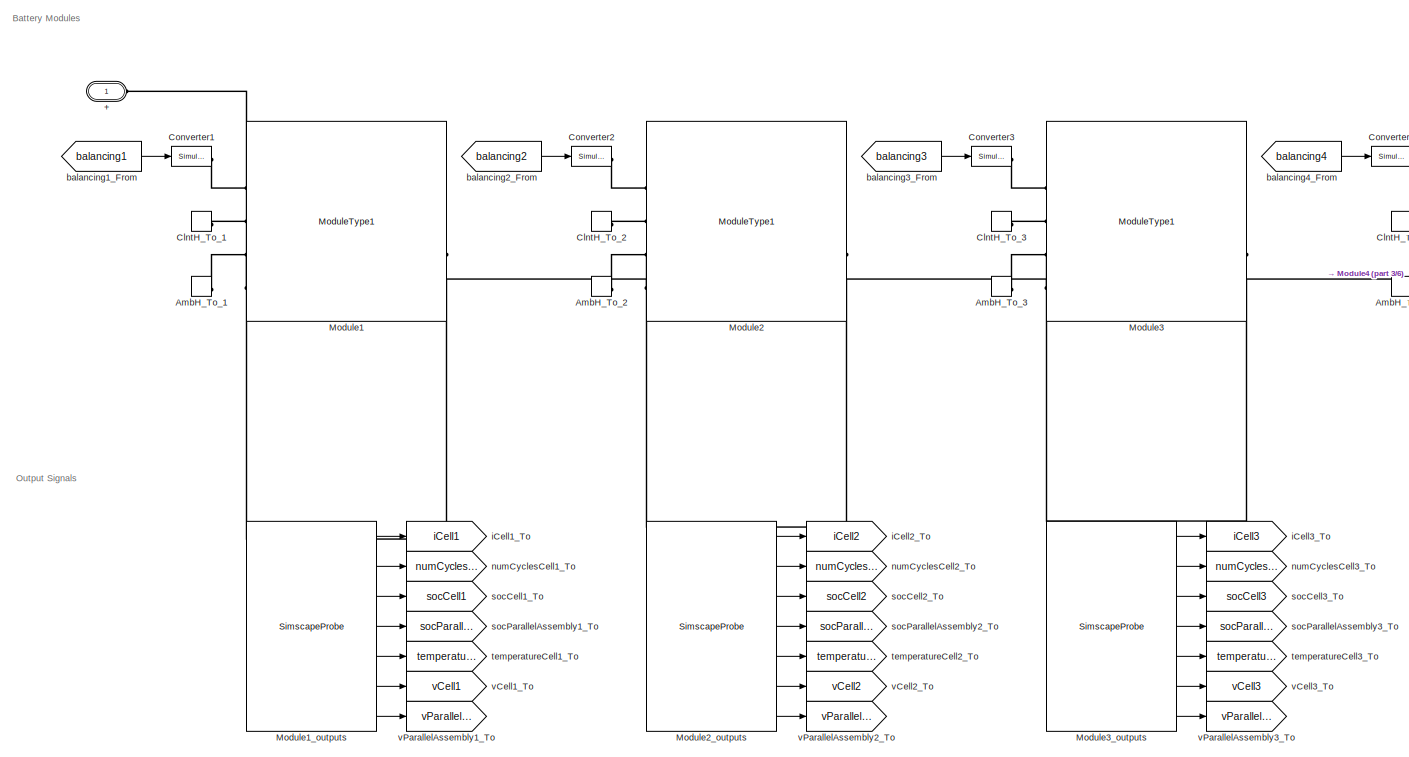
[diagram: Pack1/ModuleAssembly2 - part 1/6, top left region]
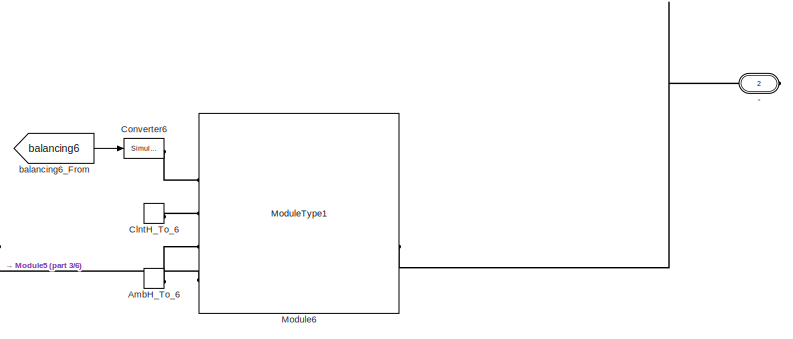
[diagram: Pack1/ModuleAssembly2 - part 2/6, top right region]
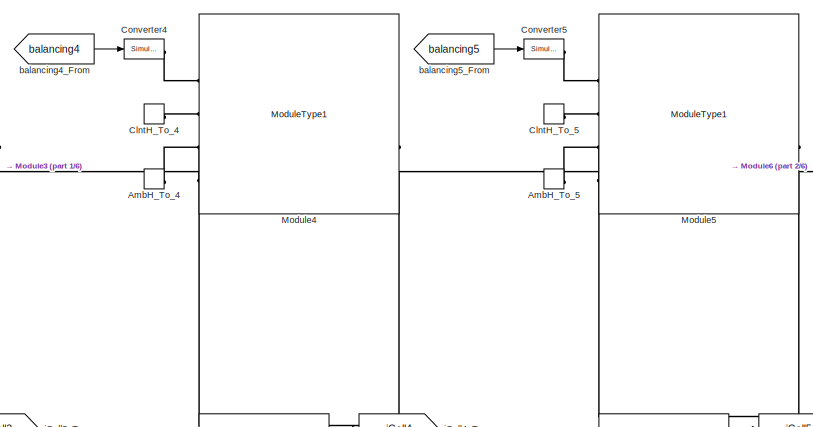
[diagram: Pack1/ModuleAssembly2 - part 3/6, top center region]
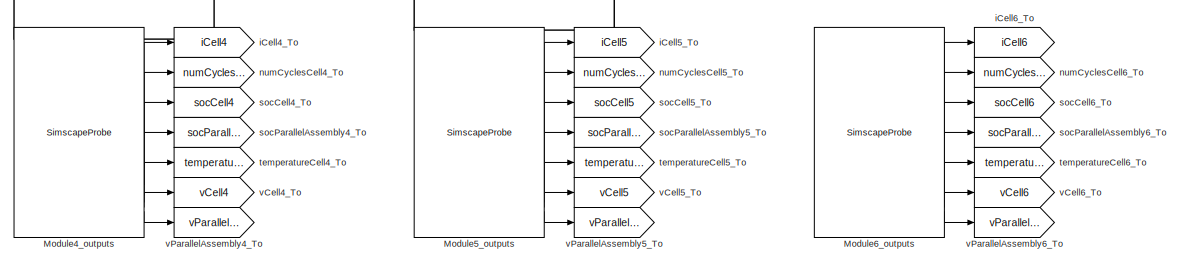
[diagram: Pack1/ModuleAssembly2 - part 4/6, middle right region]
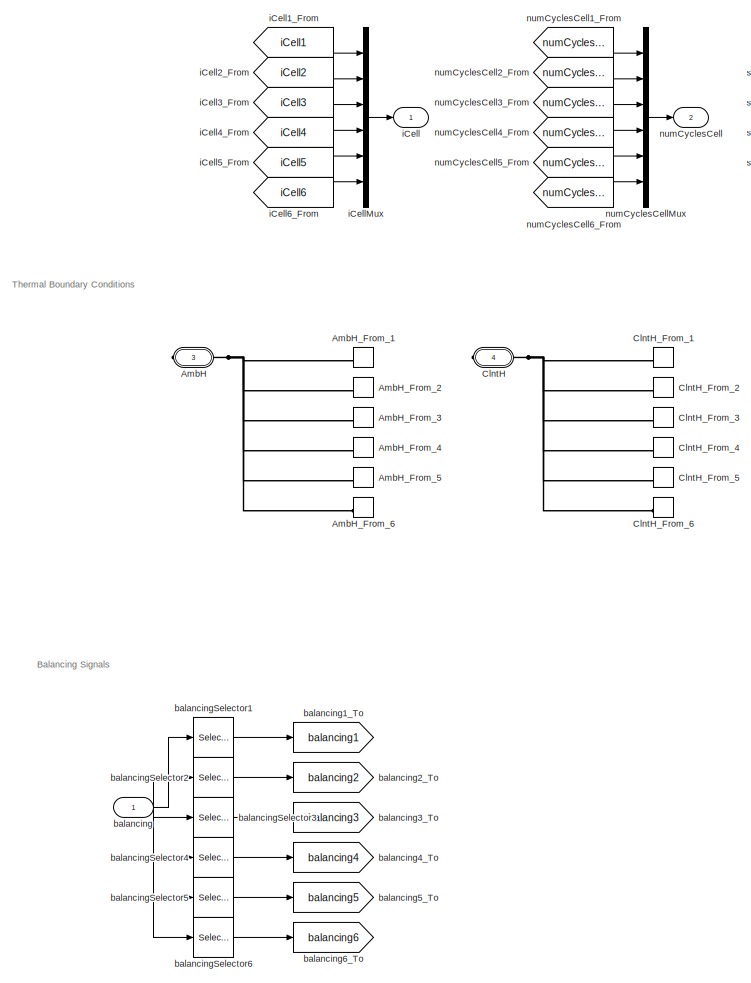
[diagram: Pack1/ModuleAssembly2 - part 5/6, bottom left region]
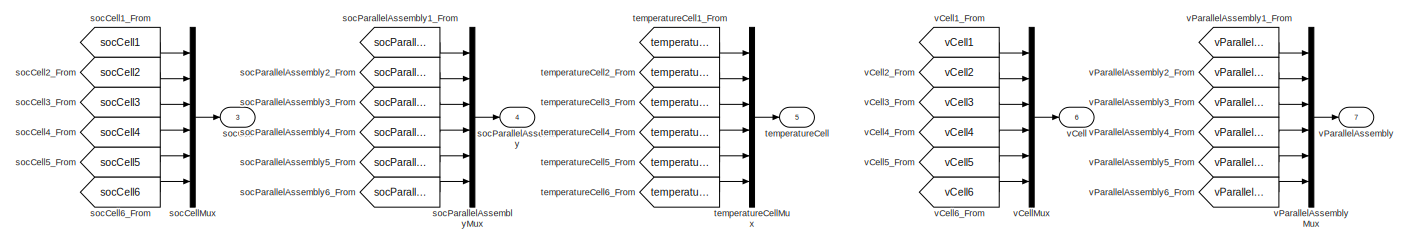
[diagram: Pack1/ModuleAssembly2 - part 6/6, central region]
BLOCK [SubSystem] Pack1/ModuleAssembly2
  CopyFcn = battery_builder_rtmsupport('copyfcn',gcbh);
  LoadFcn = battery_builder_rtmsupport('loadfcn',gcbh);
  PreCopyFcn = battery_builder_rtmsupport('precopyfcn',gcbh);
  PreDeleteFcn = battery_builder_rtmsupport('predeletefcn',gcbh);
BLOCK [PMIOPort] Pack1/ModuleAssembly2/+
  Side = Left
BLOCK [PMIOPort] Pack1/ModuleAssembly2/-
  Port = 2
  Side = Right
BLOCK [PMIOPort] Pack1/ModuleAssembly2/AmbH
  ConnectionType = Connection: foundation.thermal.thermal
  Port = 3
  Side = Right
BLOCK [ConnectionLabel] Pack1/ModuleAssembly2/AmbH_From_1
  Label = ambH_1
BLOCK [ConnectionLabel] Pack1/ModuleAssembly2/AmbH_From_2
  Label = ambH_2
BLOCK [ConnectionLabel] Pack1/ModuleAssembly2/AmbH_From_3
  Label = ambH_3
BLOCK [ConnectionLabel] Pack1/ModuleAssembly2/AmbH_From_4
  Label = ambH_4
BLOCK [ConnectionLabel] Pack1/ModuleAssembly2/AmbH_From_5
  Label = ambH_5
BLOCK [ConnectionLabel] Pack1/ModuleAssembly2/AmbH_From_6
  Label = ambH_6
BLOCK [ConnectionLabel] Pack1/ModuleAssembly2/AmbH_To_1
  Label = ambH_1
BLOCK [ConnectionLabel] Pack1/ModuleAssembly2/AmbH_To_2
  Label = ambH_2
BLOCK [ConnectionLabel] Pack1/ModuleAssembly2/AmbH_To_3
  Label = ambH_3
BLOCK [ConnectionLabel] Pack1/ModuleAssembly2/AmbH_To_4
  Label = ambH_4
BLOCK [ConnectionLabel] Pack1/ModuleAssembly2/AmbH_To_5
  Label = ambH_5
BLOCK [ConnectionLabel] Pack1/ModuleAssembly2/AmbH_To_6
  Label = ambH_6
BLOCK [PMIOPort] Pack1/ModuleAssembly2/ClntH
  ConnectionType = Connection: foundation.thermal.thermal
  Port = 4
  Side = Right
BLOCK [ConnectionLabel] Pack1/ModuleAssembly2/ClntH_From_1
  Label = clntH_1
BLOCK [ConnectionLabel] Pack1/ModuleAssembly2/ClntH_From_2
  Label = clntH_2
BLOCK [ConnectionLabel] Pack1/ModuleAssembly2/ClntH_From_3
  Label = clntH_3
BLOCK [ConnectionLabel] Pack1/ModuleAssembly2/ClntH_From_4
  Label = clntH_4
BLOCK [ConnectionLabel] Pack1/ModuleAssembly2/ClntH_From_5
  Label = clntH_5
BLOCK [ConnectionLabel] Pack1/ModuleAssembly2/ClntH_From_6
  Label = clntH_6
BLOCK [ConnectionLabel] Pack1/ModuleAssembly2/ClntH_To_1
  Label = clntH_1
BLOCK [ConnectionLabel] Pack1/ModuleAssembly2/ClntH_To_2
  Label = clntH_2
BLOCK [ConnectionLabel] Pack1/ModuleAssembly2/ClntH_To_3
  Label = clntH_3
BLOCK [ConnectionLabel] Pack1/ModuleAssembly2/ClntH_To_4
  Label = clntH_4
BLOCK [ConnectionLabel] Pack1/ModuleAssembly2/ClntH_To_5
  Label = clntH_5
BLOCK [ConnectionLabel] Pack1/ModuleAssembly2/ClntH_To_6
  Label = clntH_6
BLOCK [Reference] Pack1/ModuleAssembly2/Converter1  REF=nesl_utility/Simulink-PS
Converter
  SourceBlock = nesl_utility/Simulink-PS\nConverter
  SourceType = Simulink-PS\nConverter
BLOCK [Reference] Pack1/ModuleAssembly2/Converter2  REF=nesl_utility/Simulink-PS
Converter
  SourceBlock = nesl_utility/Simulink-PS\nConverter
  SourceType = Simulink-PS\nConverter
BLOCK [Reference] Pack1/ModuleAssembly2/Converter3  REF=nesl_utility/Simulink-PS
Converter
  SourceBlock = nesl_utility/Simulink-PS\nConverter
  SourceType = Simulink-PS\nConverter
BLOCK [Reference] Pack1/ModuleAssembly2/Converter4  REF=nesl_utility/Simulink-PS
Converter
  SourceBlock = nesl_utility/Simulink-PS\nConverter
  SourceType = Simulink-PS\nConverter
BLOCK [Reference] Pack1/ModuleAssembly2/Converter5  REF=nesl_utility/Simulink-PS
Converter
  SourceBlock = nesl_utility/Simulink-PS\nConverter
  SourceType = Simulink-PS\nConverter
BLOCK [Reference] Pack1/ModuleAssembly2/Converter6  REF=nesl_utility/Simulink-PS
Converter
  SourceBlock = nesl_utility/Simulink-PS\nConverter
  SourceType = Simulink-PS\nConverter
BLOCK [Reference] Pack1/ModuleAssembly2/Module1  REF=GD_Batterymodel_NSGAII_1_lib/Modules/ModuleType1
  SourceBlock = GD_Batterymodel_NSGAII_1_lib/Modules/ModuleType1
  SourceType = ModuleType1
BLOCK [SimscapeProbe] Pack1/ModuleAssembly2/Module1_outputs
  BoundBlock = 371
  Variables = {iCell, numCyclesCell, socCell, socParallelAssembly, temperatureCell, vCell, vParallelAssembly}
BLOCK [Reference] Pack1/ModuleAssembly2/Module2  REF=GD_Batterymodel_NSGAII_1_lib/Modules/ModuleType1
  SourceBlock = GD_Batterymodel_NSGAII_1_lib/Modules/ModuleType1
  SourceType = ModuleType1
BLOCK [SimscapeProbe] Pack1/ModuleAssembly2/Module2_outputs
  BoundBlock = 373
  Variables = {iCell, numCyclesCell, socCell, socParallelAssembly, temperatureCell, vCell, vParallelAssembly}
BLOCK [Reference] Pack1/ModuleAssembly2/Module3  REF=GD_Batterymodel_NSGAII_1_lib/Modules/ModuleType1
  SourceBlock = GD_Batterymodel_NSGAII_1_lib/Modules/ModuleType1
  SourceType = ModuleType1
BLOCK [SimscapeProbe] Pack1/ModuleAssembly2/Module3_outputs
  BoundBlock = 375
  Variables = {iCell, numCyclesCell, socCell, socParallelAssembly, temperatureCell, vCell, vParallelAssembly}
BLOCK [Reference] Pack1/ModuleAssembly2/Module4  REF=GD_Batterymodel_NSGAII_1_lib/Modules/ModuleType1
  SourceBlock = GD_Batterymodel_NSGAII_1_lib/Modules/ModuleType1
  SourceType = ModuleType1
BLOCK [SimscapeProbe] Pack1/ModuleAssembly2/Module4_outputs
  BoundBlock = 377
  Variables = {iCell, numCyclesCell, socCell, socParallelAssembly, temperatureCell, vCell, vParallelAssembly}
BLOCK [Reference] Pack1/ModuleAssembly2/Module5  REF=GD_Batterymodel_NSGAII_1_lib/Modules/ModuleType1
  SourceBlock = GD_Batterymodel_NSGAII_1_lib/Modules/ModuleType1
  SourceType = ModuleType1
BLOCK [SimscapeProbe] Pack1/ModuleAssembly2/Module5_outputs
  BoundBlock = 379
  Variables = {iCell, numCyclesCell, socCell, socParallelAssembly, temperatureCell, vCell, vParallelAssembly}
BLOCK [Reference] Pack1/ModuleAssembly2/Module6  REF=GD_Batterymodel_NSGAII_1_lib/Modules/ModuleType1
  SourceBlock = GD_Batterymodel_NSGAII_1_lib/Modules/ModuleType1
  SourceType = ModuleType1
BLOCK [SimscapeProbe] Pack1/ModuleAssembly2/Module6_outputs
  BoundBlock = 381
  Variables = {iCell, numCyclesCell, socCell, socParallelAssembly, temperatureCell, vCell, vParallelAssembly}
BLOCK [Inport] Pack1/ModuleAssembly2/balancing
  PortDimensions = 108
BLOCK [From] Pack1/ModuleAssembly2/balancing1_From
  GotoTag = balancing1
BLOCK [Goto] Pack1/ModuleAssembly2/balancing1_To
  GotoTag = balancing1
BLOCK [From] Pack1/ModuleAssembly2/balancing2_From
  GotoTag = balancing2
BLOCK [Goto] Pack1/ModuleAssembly2/balancing2_To
  GotoTag = balancing2
BLOCK [From] Pack1/ModuleAssembly2/balancing3_From
  GotoTag = balancing3
BLOCK [Goto] Pack1/ModuleAssembly2/balancing3_To
  GotoTag = balancing3
BLOCK [From] Pack1/ModuleAssembly2/balancing4_From
  GotoTag = balancing4
BLOCK [Goto] Pack1/ModuleAssembly2/balancing4_To
  GotoTag = balancing4
BLOCK [From] Pack1/ModuleAssembly2/balancing5_From
  GotoTag = balancing5
BLOCK [Goto] Pack1/ModuleAssembly2/balancing5_To
  GotoTag = balancing5
BLOCK [From] Pack1/ModuleAssembly2/balancing6_From
  GotoTag = balancing6
BLOCK [Goto] Pack1/ModuleAssembly2/balancing6_To
  GotoTag = balancing6
BLOCK [Selector] Pack1/ModuleAssembly2/balancingSelector1
  IndexOptions = Index vector (dialog)
  Indices = [1   2   3   4   5   6   7   8   9  10  11  12  13  14  15  16  17  18]
  InputPortWidth = 108
  OutputSizes = 1
BLOCK [Selector] Pack1/ModuleAssembly2/balancingSelector2
  IndexOptions = Index vector (dialog)
  Indices = [19  20  21  22  23  24  25  26  27  28  29  30  31  32  33  34  35  36]
  InputPortWidth = 108
  OutputSizes = 1
BLOCK [Selector] Pack1/ModuleAssembly2/balancingSelector3
  IndexOptions = Index vector (dialog)
  Indices = [37  38  39  40  41  42  43  44  45  46  47  48  49  50  51  52  53  54]
  InputPortWidth = 108
  OutputSizes = 1
BLOCK [Selector] Pack1/ModuleAssembly2/balancingSelector4
  IndexOptions = Index vector (dialog)
  Indices = [55  56  57  58  59  60  61  62  63  64  65  66  67  68  69  70  71  72]
  InputPortWidth = 108
  OutputSizes = 1
BLOCK [Selector] Pack1/ModuleAssembly2/balancingSelector5
  IndexOptions = Index vector (dialog)
  Indices = [73  74  75  76  77  78  79  80  81  82  83  84  85  86  87  88  89  90]
  InputPortWidth = 108
  OutputSizes = 1
BLOCK [Selector] Pack1/ModuleAssembly2/balancingSelector6
  IndexOptions = Index vector (dialog)
  Indices = [91   92   93   94   95   96   97   98   99  100  101  102  103  104  105  106  107  108]
  InputPortWidth = 108
  OutputSizes = 1
BLOCK [Outport] Pack1/ModuleAssembly2/iCell
BLOCK [From] Pack1/ModuleAssembly2/iCell1_From
  GotoTag = iCell1
BLOCK [Goto] Pack1/ModuleAssembly2/iCell1_To
  GotoTag = iCell1
BLOCK [From] Pack1/ModuleAssembly2/iCell2_From
  GotoTag = iCell2
BLOCK [Goto] Pack1/ModuleAssembly2/iCell2_To
  GotoTag = iCell2
BLOCK [From] Pack1/ModuleAssembly2/iCell3_From
  GotoTag = iCell3
BLOCK [Goto] Pack1/ModuleAssembly2/iCell3_To
  GotoTag = iCell3
BLOCK [From] Pack1/ModuleAssembly2/iCell4_From
  GotoTag = iCell4
BLOCK [Goto] Pack1/ModuleAssembly2/iCell4_To
  GotoTag = iCell4
BLOCK [From] Pack1/ModuleAssembly2/iCell5_From
  GotoTag = iCell5
BLOCK [Goto] Pack1/ModuleAssembly2/iCell5_To
  GotoTag = iCell5
BLOCK [From] Pack1/ModuleAssembly2/iCell6_From
  GotoTag = iCell6
BLOCK [Goto] Pack1/ModuleAssembly2/iCell6_To
  GotoTag = iCell6
BLOCK [Mux] Pack1/ModuleAssembly2/iCellMux
  DisplayOption = bar
  Inputs = 6
BLOCK [Outport] Pack1/ModuleAssembly2/numCyclesCell
  Port = 2
BLOCK [From] Pack1/ModuleAssembly2/numCyclesCell1_From
  GotoTag = numCyclesCell1
BLOCK [Goto] Pack1/ModuleAssembly2/numCyclesCell1_To
  GotoTag = numCyclesCell1
BLOCK [From] Pack1/ModuleAssembly2/numCyclesCell2_From
  GotoTag = numCyclesCell2
BLOCK [Goto] Pack1/ModuleAssembly2/numCyclesCell2_To
  GotoTag = numCyclesCell2
BLOCK [From] Pack1/ModuleAssembly2/numCyclesCell3_From
  GotoTag = numCyclesCell3
BLOCK [Goto] Pack1/ModuleAssembly2/numCyclesCell3_To
  GotoTag = numCyclesCell3
BLOCK [From] Pack1/ModuleAssembly2/numCyclesCell4_From
  GotoTag = numCyclesCell4
BLOCK [Goto] Pack1/ModuleAssembly2/numCyclesCell4_To
  GotoTag = numCyclesCell4
BLOCK [From] Pack1/ModuleAssembly2/numCyclesCell5_From
  GotoTag = numCyclesCell5
BLOCK [Goto] Pack1/ModuleAssembly2/numCyclesCell5_To
  GotoTag = numCyclesCell5
BLOCK [From] Pack1/ModuleAssembly2/numCyclesCell6_From
  GotoTag = numCyclesCell6
BLOCK [Goto] Pack1/ModuleAssembly2/numCyclesCell6_To
  GotoTag = numCyclesCell6
BLOCK [Mux] Pack1/ModuleAssembly2/numCyclesCellMux
  DisplayOption = bar
  Inputs = 6
BLOCK [Outport] Pack1/ModuleAssembly2/socCell
  Port = 3
BLOCK [From] Pack1/ModuleAssembly2/socCell1_From
  GotoTag = socCell1
BLOCK [Goto] Pack1/ModuleAssembly2/socCell1_To
  GotoTag = socCell1
BLOCK [From] Pack1/ModuleAssembly2/socCell2_From
  GotoTag = socCell2
BLOCK [Goto] Pack1/ModuleAssembly2/socCell2_To
  GotoTag = socCell2
BLOCK [From] Pack1/ModuleAssembly2/socCell3_From
  GotoTag = socCell3
BLOCK [Goto] Pack1/ModuleAssembly2/socCell3_To
  GotoTag = socCell3
BLOCK [From] Pack1/ModuleAssembly2/socCell4_From
  GotoTag = socCell4
BLOCK [Goto] Pack1/ModuleAssembly2/socCell4_To
  GotoTag = socCell4
BLOCK [From] Pack1/ModuleAssembly2/socCell5_From
  GotoTag = socCell5
BLOCK [Goto] Pack1/ModuleAssembly2/socCell5_To
  GotoTag = socCell5
BLOCK [From] Pack1/ModuleAssembly2/socCell6_From
  GotoTag = socCell6
BLOCK [Goto] Pack1/ModuleAssembly2/socCell6_To
  GotoTag = socCell6
BLOCK [Mux] Pack1/ModuleAssembly2/socCellMux
  DisplayOption = bar
  Inputs = 6
BLOCK [Outport] Pack1/ModuleAssembly2/socParallelAssembly
  Port = 4
BLOCK [From] Pack1/ModuleAssembly2/socParallelAssembly1_From
  GotoTag = socParallelAssembly1
BLOCK [Goto] Pack1/ModuleAssembly2/socParallelAssembly1_To
  GotoTag = socParallelAssembly1
BLOCK [From] Pack1/ModuleAssembly2/socParallelAssembly2_From
  GotoTag = socParallelAssembly2
BLOCK [Goto] Pack1/ModuleAssembly2/socParallelAssembly2_To
  GotoTag = socParallelAssembly2
BLOCK [From] Pack1/ModuleAssembly2/socParallelAssembly3_From
  GotoTag = socParallelAssembly3
BLOCK [Goto] Pack1/ModuleAssembly2/socParallelAssembly3_To
  GotoTag = socParallelAssembly3
BLOCK [From] Pack1/ModuleAssembly2/socParallelAssembly4_From
  GotoTag = socParallelAssembly4
BLOCK [Goto] Pack1/ModuleAssembly2/socParallelAssembly4_To
  GotoTag = socParallelAssembly4
BLOCK [From] Pack1/ModuleAssembly2/socParallelAssembly5_From
  GotoTag = socParallelAssembly5
BLOCK [Goto] Pack1/ModuleAssembly2/socParallelAssembly5_To
  GotoTag = socParallelAssembly5
BLOCK [From] Pack1/ModuleAssembly2/socParallelAssembly6_From
  GotoTag = socParallelAssembly6
BLOCK [Goto] Pack1/ModuleAssembly2/socParallelAssembly6_To
  GotoTag = socParallelAssembly6
BLOCK [Mux] Pack1/ModuleAssembly2/socParallelAssemblyMux
  DisplayOption = bar
  Inputs = 6
BLOCK [Outport] Pack1/ModuleAssembly2/temperatureCell
  Port = 5
BLOCK [From] Pack1/ModuleAssembly2/temperatureCell1_From
  GotoTag = temperatureCell1
BLOCK [Goto] Pack1/ModuleAssembly2/temperatureCell1_To
  GotoTag = temperatureCell1
BLOCK [From] Pack1/ModuleAssembly2/temperatureCell2_From
  GotoTag = temperatureCell2
BLOCK [Goto] Pack1/ModuleAssembly2/temperatureCell2_To
  GotoTag = temperatureCell2
BLOCK [From] Pack1/ModuleAssembly2/temperatureCell3_From
  GotoTag = temperatureCell3
BLOCK [Goto] Pack1/ModuleAssembly2/temperatureCell3_To
  GotoTag = temperatureCell3
BLOCK [From] Pack1/ModuleAssembly2/temperatureCell4_From
  GotoTag = temperatureCell4
BLOCK [Goto] Pack1/ModuleAssembly2/temperatureCell4_To
  GotoTag = temperatureCell4
BLOCK [From] Pack1/ModuleAssembly2/temperatureCell5_From
  GotoTag = temperatureCell5
BLOCK [Goto] Pack1/ModuleAssembly2/temperatureCell5_To
  GotoTag = temperatureCell5
BLOCK [From] Pack1/ModuleAssembly2/temperatureCell6_From
  GotoTag = temperatureCell6
BLOCK [Goto] Pack1/ModuleAssembly2/temperatureCell6_To
  GotoTag = temperatureCell6
BLOCK [Mux] Pack1/ModuleAssembly2/temperatureCellMux
  DisplayOption = bar
  Inputs = 6
BLOCK [Outport] Pack1/ModuleAssembly2/vCell
  Port = 6
BLOCK [From] Pack1/ModuleAssembly2/vCell1_From
  GotoTag = vCell1
BLOCK [Goto] Pack1/ModuleAssembly2/vCell1_To
  GotoTag = vCell1
BLOCK [From] Pack1/ModuleAssembly2/vCell2_From
  GotoTag = vCell2
BLOCK [Goto] Pack1/ModuleAssembly2/vCell2_To
  GotoTag = vCell2
BLOCK [From] Pack1/ModuleAssembly2/vCell3_From
  GotoTag = vCell3
BLOCK [Goto] Pack1/ModuleAssembly2/vCell3_To
  GotoTag = vCell3
BLOCK [From] Pack1/ModuleAssembly2/vCell4_From
  GotoTag = vCell4
BLOCK [Goto] Pack1/ModuleAssembly2/vCell4_To
  GotoTag = vCell4
BLOCK [From] Pack1/ModuleAssembly2/vCell5_From
  GotoTag = vCell5
BLOCK [Goto] Pack1/ModuleAssembly2/vCell5_To
  GotoTag = vCell5
BLOCK [From] Pack1/ModuleAssembly2/vCell6_From
  GotoTag = vCell6
BLOCK [Goto] Pack1/ModuleAssembly2/vCell6_To
  GotoTag = vCell6
BLOCK [Mux] Pack1/ModuleAssembly2/vCellMux
  DisplayOption = bar
  Inputs = 6
BLOCK [Outport] Pack1/ModuleAssembly2/vParallelAssembly
  Port = 7
BLOCK [From] Pack1/ModuleAssembly2/vParallelAssembly1_From
  GotoTag = vParallelAssembly1
BLOCK [Goto] Pack1/ModuleAssembly2/vParallelAssembly1_To
  GotoTag = vParallelAssembly1
BLOCK [From] Pack1/ModuleAssembly2/vParallelAssembly2_From
  GotoTag = vParallelAssembly2
BLOCK [Goto] Pack1/ModuleAssembly2/vParallelAssembly2_To
  GotoTag = vParallelAssembly2
BLOCK [From] Pack1/ModuleAssembly2/vParallelAssembly3_From
  GotoTag = vParallelAssembly3
BLOCK [Goto] Pack1/ModuleAssembly2/vParallelAssembly3_To
  GotoTag = vParallelAssembly3
BLOCK [From] Pack1/ModuleAssembly2/vParallelAssembly4_From
  GotoTag = vParallelAssembly4
BLOCK [Goto] Pack1/ModuleAssembly2/vParallelAssembly4_To
  GotoTag = vParallelAssembly4
BLOCK [From] Pack1/ModuleAssembly2/vParallelAssembly5_From
  GotoTag = vParallelAssembly5
BLOCK [Goto] Pack1/ModuleAssembly2/vParallelAssembly5_To
  GotoTag = vParallelAssembly5
BLOCK [From] Pack1/ModuleAssembly2/vParallelAssembly6_From
  GotoTag = vParallelAssembly6
BLOCK [Goto] Pack1/ModuleAssembly2/vParallelAssembly6_To
  GotoTag = vParallelAssembly6
BLOCK [Mux] Pack1/ModuleAssembly2/vParallelAssemblyMux
  DisplayOption = bar
  Inputs = 6
BLOCK [Inport] Pack1/balancing
  PortDimensions = 216
BLOCK [From] Pack1/balancing1_From
  GotoTag = balancing1
BLOCK [Goto] Pack1/balancing1_To
  GotoTag = balancing1
BLOCK [From] Pack1/balancing2_From
  GotoTag = balancing2
BLOCK [Goto] Pack1/balancing2_To
  GotoTag = balancing2
BLOCK [Selector] Pack1/balancingSelector1
  IndexOptions = Index vector (dialog)
  Indices = [1    2    3    4    5    6    7    8    9   10   11   12   13   14   15   16   17   18   19   20   21   22   23   24   25   26   27   28   29   30   31   32   33   34   35   36   37   38   39   40   41   42   43   44   45   46   47   48   49   50   51   52   53   54   55   56   57   58   59   60   61   62   63   64   65   66   67   68   69   70   71   72   73   74   75   76   77   78   79   80   ...<+138ch>
  InputPortWidth = 216
  OutputSizes = 1
BLOCK [Selector] Pack1/balancingSelector2
  IndexOptions = Index vector (dialog)
  Indices = [109  110  111  112  113  114  115  116  117  118  119  120  121  122  123  124  125  126  127  128  129  130  131  132  133  134  135  136  137  138  139  140  141  142  143  144  145  146  147  148  149  150  151  152  153  154  155  156  157  158  159  160  161  162  163  164  165  166  167  168  169  170  171  172  173  174  175  176  177  178  179  180  181  182  183  184  185  186  187  188 ...<+140ch>
  InputPortWidth = 216
  OutputSizes = 1
BLOCK [Outport] Pack1/iCell
BLOCK [From] Pack1/iCellFrom1
  GotoTag = iCell1
BLOCK [From] Pack1/iCellFrom2
  GotoTag = iCell2
BLOCK [Mux] Pack1/iCellMux
  DisplayOption = bar
  Inputs = 2
BLOCK [Goto] Pack1/iCellTo1
  GotoTag = iCell1
BLOCK [Goto] Pack1/iCellTo2
  GotoTag = iCell2
BLOCK [Outport] Pack1/numCyclesCell
  Port = 2
BLOCK [From] Pack1/numCyclesCellFrom1
  GotoTag = numCyclesCell1
BLOCK [From] Pack1/numCyclesCellFrom2
  GotoTag = numCyclesCell2
BLOCK [Mux] Pack1/numCyclesCellMux
  DisplayOption = bar
  Inputs = 2
BLOCK [Goto] Pack1/numCyclesCellTo1
  GotoTag = numCyclesCell1
BLOCK [Goto] Pack1/numCyclesCellTo2
  GotoTag = numCyclesCell2
BLOCK [Outport] Pack1/socCell
  Port = 3
BLOCK [From] Pack1/socCellFrom1
  GotoTag = socCell1
BLOCK [From] Pack1/socCellFrom2
  GotoTag = socCell2
BLOCK [Mux] Pack1/socCellMux
  DisplayOption = bar
  Inputs = 2
BLOCK [Goto] Pack1/socCellTo1
  GotoTag = socCell1
BLOCK [Goto] Pack1/socCellTo2
  GotoTag = socCell2
BLOCK [Outport] Pack1/socParallelAssembly
  Port = 4
BLOCK [From] Pack1/socParallelAssemblyFrom1
  GotoTag = socParallelAssembly1
BLOCK [From] Pack1/socParallelAssemblyFrom2
  GotoTag = socParallelAssembly2
BLOCK [Mux] Pack1/socParallelAssemblyMux
  DisplayOption = bar
  Inputs = 2
BLOCK [Goto] Pack1/socParallelAssemblyTo1
  GotoTag = socParallelAssembly1
BLOCK [Goto] Pack1/socParallelAssemblyTo2
  GotoTag = socParallelAssembly2
BLOCK [Outport] Pack1/temperatureCell
  Port = 5
BLOCK [From] Pack1/temperatureCellFrom1
  GotoTag = temperatureCell1
BLOCK [From] Pack1/temperatureCellFrom2
  GotoTag = temperatureCell2
BLOCK [Mux] Pack1/temperatureCellMux
  DisplayOption = bar
  Inputs = 2
BLOCK [Goto] Pack1/temperatureCellTo1
  GotoTag = temperatureCell1
BLOCK [Goto] Pack1/temperatureCellTo2
  GotoTag = temperatureCell2
BLOCK [Outport] Pack1/vCell
  Port = 6
BLOCK [From] Pack1/vCellFrom1
  GotoTag = vCell1
BLOCK [From] Pack1/vCellFrom2
  GotoTag = vCell2
BLOCK [Mux] Pack1/vCellMux
  DisplayOption = bar
  Inputs = 2
BLOCK [Goto] Pack1/vCellTo1
  GotoTag = vCell1
BLOCK [Goto] Pack1/vCellTo2
  GotoTag = vCell2
BLOCK [Outport] Pack1/vParallelAssembly
  Port = 7
BLOCK [From] Pack1/vParallelAssemblyFrom1
  GotoTag = vParallelAssembly1
BLOCK [From] Pack1/vParallelAssemblyFrom2
  GotoTag = vParallelAssembly2
BLOCK [Mux] Pack1/vParallelAssemblyMux
  DisplayOption = bar
  Inputs = 2
BLOCK [Goto] Pack1/vParallelAssemblyTo1
  GotoTag = vParallelAssembly1
BLOCK [Goto] Pack1/vParallelAssemblyTo2
  GotoTag = vParallelAssembly2
ANNOTATION ModuleAssemblies/ModuleAssemblyType1: Balancing Signals
ANNOTATION ModuleAssemblies/ModuleAssemblyType1: Battery Modules
ANNOTATION ModuleAssemblies/ModuleAssemblyType1: Output Signals
ANNOTATION ModuleAssemblies/ModuleAssemblyType1: Thermal Boundary Conditions
ANNOTATION Pack1: Balancing Signals
ANNOTATION Pack1: Battery Module Assemblies
ANNOTATION Pack1: Output Signals
ANNOTATION Pack1: Thermal Boundary Conditions
ANNOTATION Pack1/ModuleAssembly1: Balancing Signals
ANNOTATION Pack1/ModuleAssembly1: Battery Modules
ANNOTATION Pack1/ModuleAssembly1: Output Signals
ANNOTATION Pack1/ModuleAssembly1: Thermal Boundary Conditions
ANNOTATION Pack1/ModuleAssembly2: Balancing Signals
ANNOTATION Pack1/ModuleAssembly2: Battery Modules
ANNOTATION Pack1/ModuleAssembly2: Output Signals
ANNOTATION Pack1/ModuleAssembly2: Thermal Boundary Conditions
LINE ModuleAssemblies/ModuleAssemblyType1/Module1_outputs:1 -> ModuleAssemblies/ModuleAssemblyType1/iCell1_To:1
LINE ModuleAssemblies/ModuleAssemblyType1/Module1_outputs:2 -> ModuleAssemblies/ModuleAssemblyType1/numCyclesCell1_To:1
LINE ModuleAssemblies/ModuleAssemblyType1/Module1_outputs:3 -> ModuleAssemblies/ModuleAssemblyType1/socCell1_To:1
LINE ModuleAssemblies/ModuleAssemblyType1/Module1_outputs:4 -> ModuleAssemblies/ModuleAssemblyType1/socParallelAssembly1_To:1
LINE ModuleAssemblies/ModuleAssemblyType1/Module1_outputs:5 -> ModuleAssemblies/ModuleAssemblyType1/temperatureCell1_To:1
LINE ModuleAssemblies/ModuleAssemblyType1/Module1_outputs:6 -> ModuleAssemblies/ModuleAssemblyType1/vCell1_To:1
LINE ModuleAssemblies/ModuleAssemblyType1/Module1_outputs:7 -> ModuleAssemblies/ModuleAssemblyType1/vParallelAssembly1_To:1
LINE ModuleAssemblies/ModuleAssemblyType1/Module2_outputs:1 -> ModuleAssemblies/ModuleAssemblyType1/iCell2_To:1
LINE ModuleAssemblies/ModuleAssemblyType1/Module2_outputs:2 -> ModuleAssemblies/ModuleAssemblyType1/numCyclesCell2_To:1
LINE ModuleAssemblies/ModuleAssemblyType1/Module2_outputs:3 -> ModuleAssemblies/ModuleAssemblyType1/socCell2_To:1
LINE ModuleAssemblies/ModuleAssemblyType1/Module2_outputs:4 -> ModuleAssemblies/ModuleAssemblyType1/socParallelAssembly2_To:1
LINE ModuleAssemblies/ModuleAssemblyType1/Module2_outputs:5 -> ModuleAssemblies/ModuleAssemblyType1/temperatureCell2_To:1
LINE ModuleAssemblies/ModuleAssemblyType1/Module2_outputs:6 -> ModuleAssemblies/ModuleAssemblyType1/vCell2_To:1
LINE ModuleAssemblies/ModuleAssemblyType1/Module2_outputs:7 -> ModuleAssemblies/ModuleAssemblyType1/vParallelAssembly2_To:1
LINE ModuleAssemblies/ModuleAssemblyType1/Module3_outputs:1 -> ModuleAssemblies/ModuleAssemblyType1/iCell3_To:1
LINE ModuleAssemblies/ModuleAssemblyType1/Module3_outputs:2 -> ModuleAssemblies/ModuleAssemblyType1/numCyclesCell3_To:1
LINE ModuleAssemblies/ModuleAssemblyType1/Module3_outputs:3 -> ModuleAssemblies/ModuleAssemblyType1/socCell3_To:1
LINE ModuleAssemblies/ModuleAssemblyType1/Module3_outputs:4 -> ModuleAssemblies/ModuleAssemblyType1/socParallelAssembly3_To:1
LINE ModuleAssemblies/ModuleAssemblyType1/Module3_outputs:5 -> ModuleAssemblies/ModuleAssemblyType1/temperatureCell3_To:1
LINE ModuleAssemblies/ModuleAssemblyType1/Module3_outputs:6 -> ModuleAssemblies/ModuleAssemblyType1/vCell3_To:1
LINE ModuleAssemblies/ModuleAssemblyType1/Module3_outputs:7 -> ModuleAssemblies/ModuleAssemblyType1/vParallelAssembly3_To:1
LINE ModuleAssemblies/ModuleAssemblyType1/Module4_outputs:1 -> ModuleAssemblies/ModuleAssemblyType1/iCell4_To:1
LINE ModuleAssemblies/ModuleAssemblyType1/Module4_outputs:2 -> ModuleAssemblies/ModuleAssemblyType1/numCyclesCell4_To:1
LINE ModuleAssemblies/ModuleAssemblyType1/Module4_outputs:3 -> ModuleAssemblies/ModuleAssemblyType1/socCell4_To:1
LINE ModuleAssemblies/ModuleAssemblyType1/Module4_outputs:4 -> ModuleAssemblies/ModuleAssemblyType1/socParallelAssembly4_To:1
LINE ModuleAssemblies/ModuleAssemblyType1/Module4_outputs:5 -> ModuleAssemblies/ModuleAssemblyType1/temperatureCell4_To:1
LINE ModuleAssemblies/ModuleAssemblyType1/Module4_outputs:6 -> ModuleAssemblies/ModuleAssemblyType1/vCell4_To:1
LINE ModuleAssemblies/ModuleAssemblyType1/Module4_outputs:7 -> ModuleAssemblies/ModuleAssemblyType1/vParallelAssembly4_To:1
LINE ModuleAssemblies/ModuleAssemblyType1/Module5_outputs:1 -> ModuleAssemblies/ModuleAssemblyType1/iCell5_To:1
LINE ModuleAssemblies/ModuleAssemblyType1/Module5_outputs:2 -> ModuleAssemblies/ModuleAssemblyType1/numCyclesCell5_To:1
LINE ModuleAssemblies/ModuleAssemblyType1/Module5_outputs:3 -> ModuleAssemblies/ModuleAssemblyType1/socCell5_To:1
LINE ModuleAssemblies/ModuleAssemblyType1/Module5_outputs:4 -> ModuleAssemblies/ModuleAssemblyType1/socParallelAssembly5_To:1
LINE ModuleAssemblies/ModuleAssemblyType1/Module5_outputs:5 -> ModuleAssemblies/ModuleAssemblyType1/temperatureCell5_To:1
LINE ModuleAssemblies/ModuleAssemblyType1/Module5_outputs:6 -> ModuleAssemblies/ModuleAssemblyType1/vCell5_To:1
LINE ModuleAssemblies/ModuleAssemblyType1/Module5_outputs:7 -> ModuleAssemblies/ModuleAssemblyType1/vParallelAssembly5_To:1
LINE ModuleAssemblies/ModuleAssemblyType1/Module6_outputs:1 -> ModuleAssemblies/ModuleAssemblyType1/iCell6_To:1
LINE ModuleAssemblies/ModuleAssemblyType1/Module6_outputs:2 -> ModuleAssemblies/ModuleAssemblyType1/numCyclesCell6_To:1
LINE ModuleAssemblies/ModuleAssemblyType1/Module6_outputs:3 -> ModuleAssemblies/ModuleAssemblyType1/socCell6_To:1
LINE ModuleAssemblies/ModuleAssemblyType1/Module6_outputs:4 -> ModuleAssemblies/ModuleAssemblyType1/socParallelAssembly6_To:1
LINE ModuleAssemblies/ModuleAssemblyType1/Module6_outputs:5 -> ModuleAssemblies/ModuleAssemblyType1/temperatureCell6_To:1
LINE ModuleAssemblies/ModuleAssemblyType1/Module6_outputs:6 -> ModuleAssemblies/ModuleAssemblyType1/vCell6_To:1
LINE ModuleAssemblies/ModuleAssemblyType1/Module6_outputs:7 -> ModuleAssemblies/ModuleAssemblyType1/vParallelAssembly6_To:1
LINE ModuleAssemblies/ModuleAssemblyType1/balancing1_From:1 -> ModuleAssemblies/ModuleAssemblyType1/Converter1:1
LINE ModuleAssemblies/ModuleAssemblyType1/balancing2_From:1 -> ModuleAssemblies/ModuleAssemblyType1/Converter2:1
LINE ModuleAssemblies/ModuleAssemblyType1/balancing3_From:1 -> ModuleAssemblies/ModuleAssemblyType1/Converter3:1
LINE ModuleAssemblies/ModuleAssemblyType1/balancing4_From:1 -> ModuleAssemblies/ModuleAssemblyType1/Converter4:1
LINE ModuleAssemblies/ModuleAssemblyType1/balancing5_From:1 -> ModuleAssemblies/ModuleAssemblyType1/Converter5:1
LINE ModuleAssemblies/ModuleAssemblyType1/balancing6_From:1 -> ModuleAssemblies/ModuleAssemblyType1/Converter6:1
NET ModuleAssemblies/ModuleAssemblyType1/balancing:1 -> ModuleAssemblies/ModuleAssemblyType1/balancingSelector1:1, ModuleAssemblies/ModuleAssemblyType1/balancingSelector2:1, ModuleAssemblies/ModuleAssemblyType1/balancingSelector3:1, ModuleAssemblies/ModuleAssemblyType1/balancingSelector4:1, ModuleAssemblies/ModuleAssemblyType1/balancingSelector5:1, ModuleAssemblies/ModuleAssemblyType1/balancingSelector6:1
LINE ModuleAssemblies/ModuleAssemblyType1/balancingSelector1:1 -> ModuleAssemblies/ModuleAssemblyType1/balancing1_To:1
LINE ModuleAssemblies/ModuleAssemblyType1/balancingSelector2:1 -> ModuleAssemblies/ModuleAssemblyType1/balancing2_To:1
LINE ModuleAssemblies/ModuleAssemblyType1/balancingSelector3:1 -> ModuleAssemblies/ModuleAssemblyType1/balancing3_To:1
LINE ModuleAssemblies/ModuleAssemblyType1/balancingSelector4:1 -> ModuleAssemblies/ModuleAssemblyType1/balancing4_To:1
LINE ModuleAssemblies/ModuleAssemblyType1/balancingSelector5:1 -> ModuleAssemblies/ModuleAssemblyType1/balancing5_To:1
LINE ModuleAssemblies/ModuleAssemblyType1/balancingSelector6:1 -> ModuleAssemblies/ModuleAssemblyType1/balancing6_To:1
LINE ModuleAssemblies/ModuleAssemblyType1/iCell1_From:1 -> ModuleAssemblies/ModuleAssemblyType1/iCellMux:1
LINE ModuleAssemblies/ModuleAssemblyType1/iCell2_From:1 -> ModuleAssemblies/ModuleAssemblyType1/iCellMux:2
LINE ModuleAssemblies/ModuleAssemblyType1/iCell3_From:1 -> ModuleAssemblies/ModuleAssemblyType1/iCellMux:3
LINE ModuleAssemblies/ModuleAssemblyType1/iCell4_From:1 -> ModuleAssemblies/ModuleAssemblyType1/iCellMux:4
LINE ModuleAssemblies/ModuleAssemblyType1/iCell5_From:1 -> ModuleAssemblies/ModuleAssemblyType1/iCellMux:5
LINE ModuleAssemblies/ModuleAssemblyType1/iCell6_From:1 -> ModuleAssemblies/ModuleAssemblyType1/iCellMux:6
LINE ModuleAssemblies/ModuleAssemblyType1/iCellMux:1 -> ModuleAssemblies/ModuleAssemblyType1/iCell:1
LINE ModuleAssemblies/ModuleAssemblyType1/numCyclesCell1_From:1 -> ModuleAssemblies/ModuleAssemblyType1/numCyclesCellMux:1
LINE ModuleAssemblies/ModuleAssemblyType1/numCyclesCell2_From:1 -> ModuleAssemblies/ModuleAssemblyType1/numCyclesCellMux:2
LINE ModuleAssemblies/ModuleAssemblyType1/numCyclesCell3_From:1 -> ModuleAssemblies/ModuleAssemblyType1/numCyclesCellMux:3
LINE ModuleAssemblies/ModuleAssemblyType1/numCyclesCell4_From:1 -> ModuleAssemblies/ModuleAssemblyType1/numCyclesCellMux:4
LINE ModuleAssemblies/ModuleAssemblyType1/numCyclesCell5_From:1 -> ModuleAssemblies/ModuleAssemblyType1/numCyclesCellMux:5
LINE ModuleAssemblies/ModuleAssemblyType1/numCyclesCell6_From:1 -> ModuleAssemblies/ModuleAssemblyType1/numCyclesCellMux:6
LINE ModuleAssemblies/ModuleAssemblyType1/numCyclesCellMux:1 -> ModuleAssemblies/ModuleAssemblyType1/numCyclesCell:1
LINE ModuleAssemblies/ModuleAssemblyType1/socCell1_From:1 -> ModuleAssemblies/ModuleAssemblyType1/socCellMux:1
LINE ModuleAssemblies/ModuleAssemblyType1/socCell2_From:1 -> ModuleAssemblies/ModuleAssemblyType1/socCellMux:2
LINE ModuleAssemblies/ModuleAssemblyType1/socCell3_From:1 -> ModuleAssemblies/ModuleAssemblyType1/socCellMux:3
LINE ModuleAssemblies/ModuleAssemblyType1/socCell4_From:1 -> ModuleAssemblies/ModuleAssemblyType1/socCellMux:4
LINE ModuleAssemblies/ModuleAssemblyType1/socCell5_From:1 -> ModuleAssemblies/ModuleAssemblyType1/socCellMux:5
LINE ModuleAssemblies/ModuleAssemblyType1/socCell6_From:1 -> ModuleAssemblies/ModuleAssemblyType1/socCellMux:6
LINE ModuleAssemblies/ModuleAssemblyType1/socCellMux:1 -> ModuleAssemblies/ModuleAssemblyType1/socCell:1
LINE ModuleAssemblies/ModuleAssemblyType1/socParallelAssembly1_From:1 -> ModuleAssemblies/ModuleAssemblyType1/socParallelAssemblyMux:1
LINE ModuleAssemblies/ModuleAssemblyType1/socParallelAssembly2_From:1 -> ModuleAssemblies/ModuleAssemblyType1/socParallelAssemblyMux:2
LINE ModuleAssemblies/ModuleAssemblyType1/socParallelAssembly3_From:1 -> ModuleAssemblies/ModuleAssemblyType1/socParallelAssemblyMux:3
LINE ModuleAssemblies/ModuleAssemblyType1/socParallelAssembly4_From:1 -> ModuleAssemblies/ModuleAssemblyType1/socParallelAssemblyMux:4
LINE ModuleAssemblies/ModuleAssemblyType1/socParallelAssembly5_From:1 -> ModuleAssemblies/ModuleAssemblyType1/socParallelAssemblyMux:5
LINE ModuleAssemblies/ModuleAssemblyType1/socParallelAssembly6_From:1 -> ModuleAssemblies/ModuleAssemblyType1/socParallelAssemblyMux:6
LINE ModuleAssemblies/ModuleAssemblyType1/socParallelAssemblyMux:1 -> ModuleAssemblies/ModuleAssemblyType1/socParallelAssembly:1
LINE ModuleAssemblies/ModuleAssemblyType1/temperatureCell1_From:1 -> ModuleAssemblies/ModuleAssemblyType1/temperatureCellMux:1
LINE ModuleAssemblies/ModuleAssemblyType1/temperatureCell2_From:1 -> ModuleAssemblies/ModuleAssemblyType1/temperatureCellMux:2
LINE ModuleAssemblies/ModuleAssemblyType1/temperatureCell3_From:1 -> ModuleAssemblies/ModuleAssemblyType1/temperatureCellMux:3
LINE ModuleAssemblies/ModuleAssemblyType1/temperatureCell4_From:1 -> ModuleAssemblies/ModuleAssemblyType1/temperatureCellMux:4
LINE ModuleAssemblies/ModuleAssemblyType1/temperatureCell5_From:1 -> ModuleAssemblies/ModuleAssemblyType1/temperatureCellMux:5
LINE ModuleAssemblies/ModuleAssemblyType1/temperatureCell6_From:1 -> ModuleAssemblies/ModuleAssemblyType1/temperatureCellMux:6
LINE ModuleAssemblies/ModuleAssemblyType1/temperatureCellMux:1 -> ModuleAssemblies/ModuleAssemblyType1/temperatureCell:1
LINE ModuleAssemblies/ModuleAssemblyType1/vCell1_From:1 -> ModuleAssemblies/ModuleAssemblyType1/vCellMux:1
LINE ModuleAssemblies/ModuleAssemblyType1/vCell2_From:1 -> ModuleAssemblies/ModuleAssemblyType1/vCellMux:2
LINE ModuleAssemblies/ModuleAssemblyType1/vCell3_From:1 -> ModuleAssemblies/ModuleAssemblyType1/vCellMux:3
LINE ModuleAssemblies/ModuleAssemblyType1/vCell4_From:1 -> ModuleAssemblies/ModuleAssemblyType1/vCellMux:4
LINE ModuleAssemblies/ModuleAssemblyType1/vCell5_From:1 -> ModuleAssemblies/ModuleAssemblyType1/vCellMux:5
LINE ModuleAssemblies/ModuleAssemblyType1/vCell6_From:1 -> ModuleAssemblies/ModuleAssemblyType1/vCellMux:6
LINE ModuleAssemblies/ModuleAssemblyType1/vCellMux:1 -> ModuleAssemblies/ModuleAssemblyType1/vCell:1
LINE ModuleAssemblies/ModuleAssemblyType1/vParallelAssembly1_From:1 -> ModuleAssemblies/ModuleAssemblyType1/vParallelAssemblyMux:1
LINE ModuleAssemblies/ModuleAssemblyType1/vParallelAssembly2_From:1 -> ModuleAssemblies/ModuleAssemblyType1/vParallelAssemblyMux:2
LINE ModuleAssemblies/ModuleAssemblyType1/vParallelAssembly3_From:1 -> ModuleAssemblies/ModuleAssemblyType1/vParallelAssemblyMux:3
LINE ModuleAssemblies/ModuleAssemblyType1/vParallelAssembly4_From:1 -> ModuleAssemblies/ModuleAssemblyType1/vParallelAssemblyMux:4
LINE ModuleAssemblies/ModuleAssemblyType1/vParallelAssembly5_From:1 -> ModuleAssemblies/ModuleAssemblyType1/vParallelAssemblyMux:5
LINE ModuleAssemblies/ModuleAssemblyType1/vParallelAssembly6_From:1 -> ModuleAssemblies/ModuleAssemblyType1/vParallelAssemblyMux:6
LINE ModuleAssemblies/ModuleAssemblyType1/vParallelAssemblyMux:1 -> ModuleAssemblies/ModuleAssemblyType1/vParallelAssembly:1
LINE Pack1/ModuleAssembly1/Module1_outputs:1 -> Pack1/ModuleAssembly1/iCell1_To:1
LINE Pack1/ModuleAssembly1/Module1_outputs:2 -> Pack1/ModuleAssembly1/numCyclesCell1_To:1
LINE Pack1/ModuleAssembly1/Module1_outputs:3 -> Pack1/ModuleAssembly1/socCell1_To:1
LINE Pack1/ModuleAssembly1/Module1_outputs:4 -> Pack1/ModuleAssembly1/socParallelAssembly1_To:1
LINE Pack1/ModuleAssembly1/Module1_outputs:5 -> Pack1/ModuleAssembly1/temperatureCell1_To:1
LINE Pack1/ModuleAssembly1/Module1_outputs:6 -> Pack1/ModuleAssembly1/vCell1_To:1
LINE Pack1/ModuleAssembly1/Module1_outputs:7 -> Pack1/ModuleAssembly1/vParallelAssembly1_To:1
LINE Pack1/ModuleAssembly1/Module2_outputs:1 -> Pack1/ModuleAssembly1/iCell2_To:1
LINE Pack1/ModuleAssembly1/Module2_outputs:2 -> Pack1/ModuleAssembly1/numCyclesCell2_To:1
LINE Pack1/ModuleAssembly1/Module2_outputs:3 -> Pack1/ModuleAssembly1/socCell2_To:1
LINE Pack1/ModuleAssembly1/Module2_outputs:4 -> Pack1/ModuleAssembly1/socParallelAssembly2_To:1
LINE Pack1/ModuleAssembly1/Module2_outputs:5 -> Pack1/ModuleAssembly1/temperatureCell2_To:1
LINE Pack1/ModuleAssembly1/Module2_outputs:6 -> Pack1/ModuleAssembly1/vCell2_To:1
LINE Pack1/ModuleAssembly1/Module2_outputs:7 -> Pack1/ModuleAssembly1/vParallelAssembly2_To:1
LINE Pack1/ModuleAssembly1/Module3_outputs:1 -> Pack1/ModuleAssembly1/iCell3_To:1
LINE Pack1/ModuleAssembly1/Module3_outputs:2 -> Pack1/ModuleAssembly1/numCyclesCell3_To:1
LINE Pack1/ModuleAssembly1/Module3_outputs:3 -> Pack1/ModuleAssembly1/socCell3_To:1
LINE Pack1/ModuleAssembly1/Module3_outputs:4 -> Pack1/ModuleAssembly1/socParallelAssembly3_To:1
LINE Pack1/ModuleAssembly1/Module3_outputs:5 -> Pack1/ModuleAssembly1/temperatureCell3_To:1
LINE Pack1/ModuleAssembly1/Module3_outputs:6 -> Pack1/ModuleAssembly1/vCell3_To:1
LINE Pack1/ModuleAssembly1/Module3_outputs:7 -> Pack1/ModuleAssembly1/vParallelAssembly3_To:1
LINE Pack1/ModuleAssembly1/Module4_outputs:1 -> Pack1/ModuleAssembly1/iCell4_To:1
LINE Pack1/ModuleAssembly1/Module4_outputs:2 -> Pack1/ModuleAssembly1/numCyclesCell4_To:1
LINE Pack1/ModuleAssembly1/Module4_outputs:3 -> Pack1/ModuleAssembly1/socCell4_To:1
LINE Pack1/ModuleAssembly1/Module4_outputs:4 -> Pack1/ModuleAssembly1/socParallelAssembly4_To:1
LINE Pack1/ModuleAssembly1/Module4_outputs:5 -> Pack1/ModuleAssembly1/temperatureCell4_To:1
LINE Pack1/ModuleAssembly1/Module4_outputs:6 -> Pack1/ModuleAssembly1/vCell4_To:1
LINE Pack1/ModuleAssembly1/Module4_outputs:7 -> Pack1/ModuleAssembly1/vParallelAssembly4_To:1
LINE Pack1/ModuleAssembly1/Module5_outputs:1 -> Pack1/ModuleAssembly1/iCell5_To:1
LINE Pack1/ModuleAssembly1/Module5_outputs:2 -> Pack1/ModuleAssembly1/numCyclesCell5_To:1
LINE Pack1/ModuleAssembly1/Module5_outputs:3 -> Pack1/ModuleAssembly1/socCell5_To:1
LINE Pack1/ModuleAssembly1/Module5_outputs:4 -> Pack1/ModuleAssembly1/socParallelAssembly5_To:1
LINE Pack1/ModuleAssembly1/Module5_outputs:5 -> Pack1/ModuleAssembly1/temperatureCell5_To:1
LINE Pack1/ModuleAssembly1/Module5_outputs:6 -> Pack1/ModuleAssembly1/vCell5_To:1
LINE Pack1/ModuleAssembly1/Module5_outputs:7 -> Pack1/ModuleAssembly1/vParallelAssembly5_To:1
LINE Pack1/ModuleAssembly1/Module6_outputs:1 -> Pack1/ModuleAssembly1/iCell6_To:1
LINE Pack1/ModuleAssembly1/Module6_outputs:2 -> Pack1/ModuleAssembly1/numCyclesCell6_To:1
LINE Pack1/ModuleAssembly1/Module6_outputs:3 -> Pack1/ModuleAssembly1/socCell6_To:1
LINE Pack1/ModuleAssembly1/Module6_outputs:4 -> Pack1/ModuleAssembly1/socParallelAssembly6_To:1
LINE Pack1/ModuleAssembly1/Module6_outputs:5 -> Pack1/ModuleAssembly1/temperatureCell6_To:1
LINE Pack1/ModuleAssembly1/Module6_outputs:6 -> Pack1/ModuleAssembly1/vCell6_To:1
LINE Pack1/ModuleAssembly1/Module6_outputs:7 -> Pack1/ModuleAssembly1/vParallelAssembly6_To:1
LINE Pack1/ModuleAssembly1/balancing1_From:1 -> Pack1/ModuleAssembly1/Converter1:1
LINE Pack1/ModuleAssembly1/balancing2_From:1 -> Pack1/ModuleAssembly1/Converter2:1
LINE Pack1/ModuleAssembly1/balancing3_From:1 -> Pack1/ModuleAssembly1/Converter3:1
LINE Pack1/ModuleAssembly1/balancing4_From:1 -> Pack1/ModuleAssembly1/Converter4:1
LINE Pack1/ModuleAssembly1/balancing5_From:1 -> Pack1/ModuleAssembly1/Converter5:1
LINE Pack1/ModuleAssembly1/balancing6_From:1 -> Pack1/ModuleAssembly1/Converter6:1
NET Pack1/ModuleAssembly1/balancing:1 -> Pack1/ModuleAssembly1/balancingSelector1:1, Pack1/ModuleAssembly1/balancingSelector2:1, Pack1/ModuleAssembly1/balancingSelector3:1, Pack1/ModuleAssembly1/balancingSelector4:1, Pack1/ModuleAssembly1/balancingSelector5:1, Pack1/ModuleAssembly1/balancingSelector6:1
LINE Pack1/ModuleAssembly1/balancingSelector1:1 -> Pack1/ModuleAssembly1/balancing1_To:1
LINE Pack1/ModuleAssembly1/balancingSelector2:1 -> Pack1/ModuleAssembly1/balancing2_To:1
LINE Pack1/ModuleAssembly1/balancingSelector3:1 -> Pack1/ModuleAssembly1/balancing3_To:1
LINE Pack1/ModuleAssembly1/balancingSelector4:1 -> Pack1/ModuleAssembly1/balancing4_To:1
LINE Pack1/ModuleAssembly1/balancingSelector5:1 -> Pack1/ModuleAssembly1/balancing5_To:1
LINE Pack1/ModuleAssembly1/balancingSelector6:1 -> Pack1/ModuleAssembly1/balancing6_To:1
LINE Pack1/ModuleAssembly1/iCell1_From:1 -> Pack1/ModuleAssembly1/iCellMux:1
LINE Pack1/ModuleAssembly1/iCell2_From:1 -> Pack1/ModuleAssembly1/iCellMux:2
LINE Pack1/ModuleAssembly1/iCell3_From:1 -> Pack1/ModuleAssembly1/iCellMux:3
LINE Pack1/ModuleAssembly1/iCell4_From:1 -> Pack1/ModuleAssembly1/iCellMux:4
LINE Pack1/ModuleAssembly1/iCell5_From:1 -> Pack1/ModuleAssembly1/iCellMux:5
LINE Pack1/ModuleAssembly1/iCell6_From:1 -> Pack1/ModuleAssembly1/iCellMux:6
LINE Pack1/ModuleAssembly1/iCellMux:1 -> Pack1/ModuleAssembly1/iCell:1
LINE Pack1/ModuleAssembly1/numCyclesCell1_From:1 -> Pack1/ModuleAssembly1/numCyclesCellMux:1
LINE Pack1/ModuleAssembly1/numCyclesCell2_From:1 -> Pack1/ModuleAssembly1/numCyclesCellMux:2
LINE Pack1/ModuleAssembly1/numCyclesCell3_From:1 -> Pack1/ModuleAssembly1/numCyclesCellMux:3
LINE Pack1/ModuleAssembly1/numCyclesCell4_From:1 -> Pack1/ModuleAssembly1/numCyclesCellMux:4
LINE Pack1/ModuleAssembly1/numCyclesCell5_From:1 -> Pack1/ModuleAssembly1/numCyclesCellMux:5
LINE Pack1/ModuleAssembly1/numCyclesCell6_From:1 -> Pack1/ModuleAssembly1/numCyclesCellMux:6
LINE Pack1/ModuleAssembly1/numCyclesCellMux:1 -> Pack1/ModuleAssembly1/numCyclesCell:1
LINE Pack1/ModuleAssembly1/socCell1_From:1 -> Pack1/ModuleAssembly1/socCellMux:1
LINE Pack1/ModuleAssembly1/socCell2_From:1 -> Pack1/ModuleAssembly1/socCellMux:2
LINE Pack1/ModuleAssembly1/socCell3_From:1 -> Pack1/ModuleAssembly1/socCellMux:3
LINE Pack1/ModuleAssembly1/socCell4_From:1 -> Pack1/ModuleAssembly1/socCellMux:4
LINE Pack1/ModuleAssembly1/socCell5_From:1 -> Pack1/ModuleAssembly1/socCellMux:5
LINE Pack1/ModuleAssembly1/socCell6_From:1 -> Pack1/ModuleAssembly1/socCellMux:6
LINE Pack1/ModuleAssembly1/socCellMux:1 -> Pack1/ModuleAssembly1/socCell:1
LINE Pack1/ModuleAssembly1/socParallelAssembly1_From:1 -> Pack1/ModuleAssembly1/socParallelAssemblyMux:1
LINE Pack1/ModuleAssembly1/socParallelAssembly2_From:1 -> Pack1/ModuleAssembly1/socParallelAssemblyMux:2
LINE Pack1/ModuleAssembly1/socParallelAssembly3_From:1 -> Pack1/ModuleAssembly1/socParallelAssemblyMux:3
LINE Pack1/ModuleAssembly1/socParallelAssembly4_From:1 -> Pack1/ModuleAssembly1/socParallelAssemblyMux:4
LINE Pack1/ModuleAssembly1/socParallelAssembly5_From:1 -> Pack1/ModuleAssembly1/socParallelAssemblyMux:5
LINE Pack1/ModuleAssembly1/socParallelAssembly6_From:1 -> Pack1/ModuleAssembly1/socParallelAssemblyMux:6
LINE Pack1/ModuleAssembly1/socParallelAssemblyMux:1 -> Pack1/ModuleAssembly1/socParallelAssembly:1
LINE Pack1/ModuleAssembly1/temperatureCell1_From:1 -> Pack1/ModuleAssembly1/temperatureCellMux:1
LINE Pack1/ModuleAssembly1/temperatureCell2_From:1 -> Pack1/ModuleAssembly1/temperatureCellMux:2
LINE Pack1/ModuleAssembly1/temperatureCell3_From:1 -> Pack1/ModuleAssembly1/temperatureCellMux:3
LINE Pack1/ModuleAssembly1/temperatureCell4_From:1 -> Pack1/ModuleAssembly1/temperatureCellMux:4
LINE Pack1/ModuleAssembly1/temperatureCell5_From:1 -> Pack1/ModuleAssembly1/temperatureCellMux:5
LINE Pack1/ModuleAssembly1/temperatureCell6_From:1 -> Pack1/ModuleAssembly1/temperatureCellMux:6
LINE Pack1/ModuleAssembly1/temperatureCellMux:1 -> Pack1/ModuleAssembly1/temperatureCell:1
LINE Pack1/ModuleAssembly1/vCell1_From:1 -> Pack1/ModuleAssembly1/vCellMux:1
LINE Pack1/ModuleAssembly1/vCell2_From:1 -> Pack1/ModuleAssembly1/vCellMux:2
LINE Pack1/ModuleAssembly1/vCell3_From:1 -> Pack1/ModuleAssembly1/vCellMux:3
LINE Pack1/ModuleAssembly1/vCell4_From:1 -> Pack1/ModuleAssembly1/vCellMux:4
LINE Pack1/ModuleAssembly1/vCell5_From:1 -> Pack1/ModuleAssembly1/vCellMux:5
LINE Pack1/ModuleAssembly1/vCell6_From:1 -> Pack1/ModuleAssembly1/vCellMux:6
LINE Pack1/ModuleAssembly1/vCellMux:1 -> Pack1/ModuleAssembly1/vCell:1
LINE Pack1/ModuleAssembly1/vParallelAssembly1_From:1 -> Pack1/ModuleAssembly1/vParallelAssemblyMux:1
LINE Pack1/ModuleAssembly1/vParallelAssembly2_From:1 -> Pack1/ModuleAssembly1/vParallelAssemblyMux:2
LINE Pack1/ModuleAssembly1/vParallelAssembly3_From:1 -> Pack1/ModuleAssembly1/vParallelAssemblyMux:3
LINE Pack1/ModuleAssembly1/vParallelAssembly4_From:1 -> Pack1/ModuleAssembly1/vParallelAssemblyMux:4
LINE Pack1/ModuleAssembly1/vParallelAssembly5_From:1 -> Pack1/ModuleAssembly1/vParallelAssemblyMux:5
LINE Pack1/ModuleAssembly1/vParallelAssembly6_From:1 -> Pack1/ModuleAssembly1/vParallelAssemblyMux:6
LINE Pack1/ModuleAssembly1/vParallelAssemblyMux:1 -> Pack1/ModuleAssembly1/vParallelAssembly:1
LINE Pack1/ModuleAssembly1:1 -> Pack1/iCellTo1:1
LINE Pack1/ModuleAssembly1:2 -> Pack1/numCyclesCellTo1:1
LINE Pack1/ModuleAssembly1:3 -> Pack1/socCellTo1:1
LINE Pack1/ModuleAssembly1:4 -> Pack1/socParallelAssemblyTo1:1
LINE Pack1/ModuleAssembly1:5 -> Pack1/temperatureCellTo1:1
LINE Pack1/ModuleAssembly1:6 -> Pack1/vCellTo1:1
LINE Pack1/ModuleAssembly1:7 -> Pack1/vParallelAssemblyTo1:1
LINE Pack1/ModuleAssembly2/Module1_outputs:1 -> Pack1/ModuleAssembly2/iCell1_To:1
LINE Pack1/ModuleAssembly2/Module1_outputs:2 -> Pack1/ModuleAssembly2/numCyclesCell1_To:1
LINE Pack1/ModuleAssembly2/Module1_outputs:3 -> Pack1/ModuleAssembly2/socCell1_To:1
LINE Pack1/ModuleAssembly2/Module1_outputs:4 -> Pack1/ModuleAssembly2/socParallelAssembly1_To:1
LINE Pack1/ModuleAssembly2/Module1_outputs:5 -> Pack1/ModuleAssembly2/temperatureCell1_To:1
LINE Pack1/ModuleAssembly2/Module1_outputs:6 -> Pack1/ModuleAssembly2/vCell1_To:1
LINE Pack1/ModuleAssembly2/Module1_outputs:7 -> Pack1/ModuleAssembly2/vParallelAssembly1_To:1
LINE Pack1/ModuleAssembly2/Module2_outputs:1 -> Pack1/ModuleAssembly2/iCell2_To:1
LINE Pack1/ModuleAssembly2/Module2_outputs:2 -> Pack1/ModuleAssembly2/numCyclesCell2_To:1
LINE Pack1/ModuleAssembly2/Module2_outputs:3 -> Pack1/ModuleAssembly2/socCell2_To:1
LINE Pack1/ModuleAssembly2/Module2_outputs:4 -> Pack1/ModuleAssembly2/socParallelAssembly2_To:1
LINE Pack1/ModuleAssembly2/Module2_outputs:5 -> Pack1/ModuleAssembly2/temperatureCell2_To:1
LINE Pack1/ModuleAssembly2/Module2_outputs:6 -> Pack1/ModuleAssembly2/vCell2_To:1
LINE Pack1/ModuleAssembly2/Module2_outputs:7 -> Pack1/ModuleAssembly2/vParallelAssembly2_To:1
LINE Pack1/ModuleAssembly2/Module3_outputs:1 -> Pack1/ModuleAssembly2/iCell3_To:1
LINE Pack1/ModuleAssembly2/Module3_outputs:2 -> Pack1/ModuleAssembly2/numCyclesCell3_To:1
LINE Pack1/ModuleAssembly2/Module3_outputs:3 -> Pack1/ModuleAssembly2/socCell3_To:1
LINE Pack1/ModuleAssembly2/Module3_outputs:4 -> Pack1/ModuleAssembly2/socParallelAssembly3_To:1
LINE Pack1/ModuleAssembly2/Module3_outputs:5 -> Pack1/ModuleAssembly2/temperatureCell3_To:1
LINE Pack1/ModuleAssembly2/Module3_outputs:6 -> Pack1/ModuleAssembly2/vCell3_To:1
LINE Pack1/ModuleAssembly2/Module3_outputs:7 -> Pack1/ModuleAssembly2/vParallelAssembly3_To:1
LINE Pack1/ModuleAssembly2/Module4_outputs:1 -> Pack1/ModuleAssembly2/iCell4_To:1
LINE Pack1/ModuleAssembly2/Module4_outputs:2 -> Pack1/ModuleAssembly2/numCyclesCell4_To:1
LINE Pack1/ModuleAssembly2/Module4_outputs:3 -> Pack1/ModuleAssembly2/socCell4_To:1
LINE Pack1/ModuleAssembly2/Module4_outputs:4 -> Pack1/ModuleAssembly2/socParallelAssembly4_To:1
LINE Pack1/ModuleAssembly2/Module4_outputs:5 -> Pack1/ModuleAssembly2/temperatureCell4_To:1
LINE Pack1/ModuleAssembly2/Module4_outputs:6 -> Pack1/ModuleAssembly2/vCell4_To:1
LINE Pack1/ModuleAssembly2/Module4_outputs:7 -> Pack1/ModuleAssembly2/vParallelAssembly4_To:1
LINE Pack1/ModuleAssembly2/Module5_outputs:1 -> Pack1/ModuleAssembly2/iCell5_To:1
LINE Pack1/ModuleAssembly2/Module5_outputs:2 -> Pack1/ModuleAssembly2/numCyclesCell5_To:1
LINE Pack1/ModuleAssembly2/Module5_outputs:3 -> Pack1/ModuleAssembly2/socCell5_To:1
LINE Pack1/ModuleAssembly2/Module5_outputs:4 -> Pack1/ModuleAssembly2/socParallelAssembly5_To:1
LINE Pack1/ModuleAssembly2/Module5_outputs:5 -> Pack1/ModuleAssembly2/temperatureCell5_To:1
LINE Pack1/ModuleAssembly2/Module5_outputs:6 -> Pack1/ModuleAssembly2/vCell5_To:1
LINE Pack1/ModuleAssembly2/Module5_outputs:7 -> Pack1/ModuleAssembly2/vParallelAssembly5_To:1
LINE Pack1/ModuleAssembly2/Module6_outputs:1 -> Pack1/ModuleAssembly2/iCell6_To:1
LINE Pack1/ModuleAssembly2/Module6_outputs:2 -> Pack1/ModuleAssembly2/numCyclesCell6_To:1
LINE Pack1/ModuleAssembly2/Module6_outputs:3 -> Pack1/ModuleAssembly2/socCell6_To:1
LINE Pack1/ModuleAssembly2/Module6_outputs:4 -> Pack1/ModuleAssembly2/socParallelAssembly6_To:1
LINE Pack1/ModuleAssembly2/Module6_outputs:5 -> Pack1/ModuleAssembly2/temperatureCell6_To:1
LINE Pack1/ModuleAssembly2/Module6_outputs:6 -> Pack1/ModuleAssembly2/vCell6_To:1
LINE Pack1/ModuleAssembly2/Module6_outputs:7 -> Pack1/ModuleAssembly2/vParallelAssembly6_To:1
LINE Pack1/ModuleAssembly2/balancing1_From:1 -> Pack1/ModuleAssembly2/Converter1:1
LINE Pack1/ModuleAssembly2/balancing2_From:1 -> Pack1/ModuleAssembly2/Converter2:1
LINE Pack1/ModuleAssembly2/balancing3_From:1 -> Pack1/ModuleAssembly2/Converter3:1
LINE Pack1/ModuleAssembly2/balancing4_From:1 -> Pack1/ModuleAssembly2/Converter4:1
LINE Pack1/ModuleAssembly2/balancing5_From:1 -> Pack1/ModuleAssembly2/Converter5:1
LINE Pack1/ModuleAssembly2/balancing6_From:1 -> Pack1/ModuleAssembly2/Converter6:1
NET Pack1/ModuleAssembly2/balancing:1 -> Pack1/ModuleAssembly2/balancingSelector1:1, Pack1/ModuleAssembly2/balancingSelector2:1, Pack1/ModuleAssembly2/balancingSelector3:1, Pack1/ModuleAssembly2/balancingSelector4:1, Pack1/ModuleAssembly2/balancingSelector5:1, Pack1/ModuleAssembly2/balancingSelector6:1
LINE Pack1/ModuleAssembly2/balancingSelector1:1 -> Pack1/ModuleAssembly2/balancing1_To:1
LINE Pack1/ModuleAssembly2/balancingSelector2:1 -> Pack1/ModuleAssembly2/balancing2_To:1
LINE Pack1/ModuleAssembly2/balancingSelector3:1 -> Pack1/ModuleAssembly2/balancing3_To:1
LINE Pack1/ModuleAssembly2/balancingSelector4:1 -> Pack1/ModuleAssembly2/balancing4_To:1
LINE Pack1/ModuleAssembly2/balancingSelector5:1 -> Pack1/ModuleAssembly2/balancing5_To:1
LINE Pack1/ModuleAssembly2/balancingSelector6:1 -> Pack1/ModuleAssembly2/balancing6_To:1
LINE Pack1/ModuleAssembly2/iCell1_From:1 -> Pack1/ModuleAssembly2/iCellMux:1
LINE Pack1/ModuleAssembly2/iCell2_From:1 -> Pack1/ModuleAssembly2/iCellMux:2
LINE Pack1/ModuleAssembly2/iCell3_From:1 -> Pack1/ModuleAssembly2/iCellMux:3
LINE Pack1/ModuleAssembly2/iCell4_From:1 -> Pack1/ModuleAssembly2/iCellMux:4
LINE Pack1/ModuleAssembly2/iCell5_From:1 -> Pack1/ModuleAssembly2/iCellMux:5
LINE Pack1/ModuleAssembly2/iCell6_From:1 -> Pack1/ModuleAssembly2/iCellMux:6
LINE Pack1/ModuleAssembly2/iCellMux:1 -> Pack1/ModuleAssembly2/iCell:1
LINE Pack1/ModuleAssembly2/numCyclesCell1_From:1 -> Pack1/ModuleAssembly2/numCyclesCellMux:1
LINE Pack1/ModuleAssembly2/numCyclesCell2_From:1 -> Pack1/ModuleAssembly2/numCyclesCellMux:2
LINE Pack1/ModuleAssembly2/numCyclesCell3_From:1 -> Pack1/ModuleAssembly2/numCyclesCellMux:3
LINE Pack1/ModuleAssembly2/numCyclesCell4_From:1 -> Pack1/ModuleAssembly2/numCyclesCellMux:4
LINE Pack1/ModuleAssembly2/numCyclesCell5_From:1 -> Pack1/ModuleAssembly2/numCyclesCellMux:5
LINE Pack1/ModuleAssembly2/numCyclesCell6_From:1 -> Pack1/ModuleAssembly2/numCyclesCellMux:6
LINE Pack1/ModuleAssembly2/numCyclesCellMux:1 -> Pack1/ModuleAssembly2/numCyclesCell:1
LINE Pack1/ModuleAssembly2/socCell1_From:1 -> Pack1/ModuleAssembly2/socCellMux:1
LINE Pack1/ModuleAssembly2/socCell2_From:1 -> Pack1/ModuleAssembly2/socCellMux:2
LINE Pack1/ModuleAssembly2/socCell3_From:1 -> Pack1/ModuleAssembly2/socCellMux:3
LINE Pack1/ModuleAssembly2/socCell4_From:1 -> Pack1/ModuleAssembly2/socCellMux:4
LINE Pack1/ModuleAssembly2/socCell5_From:1 -> Pack1/ModuleAssembly2/socCellMux:5
LINE Pack1/ModuleAssembly2/socCell6_From:1 -> Pack1/ModuleAssembly2/socCellMux:6
LINE Pack1/ModuleAssembly2/socCellMux:1 -> Pack1/ModuleAssembly2/socCell:1
LINE Pack1/ModuleAssembly2/socParallelAssembly1_From:1 -> Pack1/ModuleAssembly2/socParallelAssemblyMux:1
LINE Pack1/ModuleAssembly2/socParallelAssembly2_From:1 -> Pack1/ModuleAssembly2/socParallelAssemblyMux:2
LINE Pack1/ModuleAssembly2/socParallelAssembly3_From:1 -> Pack1/ModuleAssembly2/socParallelAssemblyMux:3
LINE Pack1/ModuleAssembly2/socParallelAssembly4_From:1 -> Pack1/ModuleAssembly2/socParallelAssemblyMux:4
LINE Pack1/ModuleAssembly2/socParallelAssembly5_From:1 -> Pack1/ModuleAssembly2/socParallelAssemblyMux:5
LINE Pack1/ModuleAssembly2/socParallelAssembly6_From:1 -> Pack1/ModuleAssembly2/socParallelAssemblyMux:6
LINE Pack1/ModuleAssembly2/socParallelAssemblyMux:1 -> Pack1/ModuleAssembly2/socParallelAssembly:1
LINE Pack1/ModuleAssembly2/temperatureCell1_From:1 -> Pack1/ModuleAssembly2/temperatureCellMux:1
LINE Pack1/ModuleAssembly2/temperatureCell2_From:1 -> Pack1/ModuleAssembly2/temperatureCellMux:2
LINE Pack1/ModuleAssembly2/temperatureCell3_From:1 -> Pack1/ModuleAssembly2/temperatureCellMux:3
LINE Pack1/ModuleAssembly2/temperatureCell4_From:1 -> Pack1/ModuleAssembly2/temperatureCellMux:4
LINE Pack1/ModuleAssembly2/temperatureCell5_From:1 -> Pack1/ModuleAssembly2/temperatureCellMux:5
LINE Pack1/ModuleAssembly2/temperatureCell6_From:1 -> Pack1/ModuleAssembly2/temperatureCellMux:6
LINE Pack1/ModuleAssembly2/temperatureCellMux:1 -> Pack1/ModuleAssembly2/temperatureCell:1
LINE Pack1/ModuleAssembly2/vCell1_From:1 -> Pack1/ModuleAssembly2/vCellMux:1
LINE Pack1/ModuleAssembly2/vCell2_From:1 -> Pack1/ModuleAssembly2/vCellMux:2
LINE Pack1/ModuleAssembly2/vCell3_From:1 -> Pack1/ModuleAssembly2/vCellMux:3
LINE Pack1/ModuleAssembly2/vCell4_From:1 -> Pack1/ModuleAssembly2/vCellMux:4
LINE Pack1/ModuleAssembly2/vCell5_From:1 -> Pack1/ModuleAssembly2/vCellMux:5
LINE Pack1/ModuleAssembly2/vCell6_From:1 -> Pack1/ModuleAssembly2/vCellMux:6
LINE Pack1/ModuleAssembly2/vCellMux:1 -> Pack1/ModuleAssembly2/vCell:1
LINE Pack1/ModuleAssembly2/vParallelAssembly1_From:1 -> Pack1/ModuleAssembly2/vParallelAssemblyMux:1
LINE Pack1/ModuleAssembly2/vParallelAssembly2_From:1 -> Pack1/ModuleAssembly2/vParallelAssemblyMux:2
LINE Pack1/ModuleAssembly2/vParallelAssembly3_From:1 -> Pack1/ModuleAssembly2/vParallelAssemblyMux:3
LINE Pack1/ModuleAssembly2/vParallelAssembly4_From:1 -> Pack1/ModuleAssembly2/vParallelAssemblyMux:4
LINE Pack1/ModuleAssembly2/vParallelAssembly5_From:1 -> Pack1/ModuleAssembly2/vParallelAssemblyMux:5
LINE Pack1/ModuleAssembly2/vParallelAssembly6_From:1 -> Pack1/ModuleAssembly2/vParallelAssemblyMux:6
LINE Pack1/ModuleAssembly2/vParallelAssemblyMux:1 -> Pack1/ModuleAssembly2/vParallelAssembly:1
LINE Pack1/ModuleAssembly2:1 -> Pack1/iCellTo2:1
LINE Pack1/ModuleAssembly2:2 -> Pack1/numCyclesCellTo2:1
LINE Pack1/ModuleAssembly2:3 -> Pack1/socCellTo2:1
LINE Pack1/ModuleAssembly2:4 -> Pack1/socParallelAssemblyTo2:1
LINE Pack1/ModuleAssembly2:5 -> Pack1/temperatureCellTo2:1
LINE Pack1/ModuleAssembly2:6 -> Pack1/vCellTo2:1
LINE Pack1/ModuleAssembly2:7 -> Pack1/vParallelAssemblyTo2:1
LINE Pack1/balancing1_From:1 -> Pack1/ModuleAssembly1:1
LINE Pack1/balancing2_From:1 -> Pack1/ModuleAssembly2:1
NET Pack1/balancing:1 -> Pack1/balancingSelector1:1, Pack1/balancingSelector2:1
LINE Pack1/balancingSelector1:1 -> Pack1/balancing1_To:1
LINE Pack1/balancingSelector2:1 -> Pack1/balancing2_To:1
LINE Pack1/iCellFrom1:1 -> Pack1/iCellMux:1
LINE Pack1/iCellFrom2:1 -> Pack1/iCellMux:2
LINE Pack1/iCellMux:1 -> Pack1/iCell:1
LINE Pack1/numCyclesCellFrom1:1 -> Pack1/numCyclesCellMux:1
LINE Pack1/numCyclesCellFrom2:1 -> Pack1/numCyclesCellMux:2
LINE Pack1/numCyclesCellMux:1 -> Pack1/numCyclesCell:1
LINE Pack1/socCellFrom1:1 -> Pack1/socCellMux:1
LINE Pack1/socCellFrom2:1 -> Pack1/socCellMux:2
LINE Pack1/socCellMux:1 -> Pack1/socCell:1
LINE Pack1/socParallelAssemblyFrom1:1 -> Pack1/socParallelAssemblyMux:1
LINE Pack1/socParallelAssemblyFrom2:1 -> Pack1/socParallelAssemblyMux:2
LINE Pack1/socParallelAssemblyMux:1 -> Pack1/socParallelAssembly:1
LINE Pack1/temperatureCellFrom1:1 -> Pack1/temperatureCellMux:1
LINE Pack1/temperatureCellFrom2:1 -> Pack1/temperatureCellMux:2
LINE Pack1/temperatureCellMux:1 -> Pack1/temperatureCell:1
LINE Pack1/vCellFrom1:1 -> Pack1/vCellMux:1
LINE Pack1/vCellFrom2:1 -> Pack1/vCellMux:2
LINE Pack1/vCellMux:1 -> Pack1/vCell:1
LINE Pack1/vParallelAssemblyFrom1:1 -> Pack1/vParallelAssemblyMux:1
LINE Pack1/vParallelAssemblyFrom2:1 -> Pack1/vParallelAssemblyMux:2
LINE Pack1/vParallelAssemblyMux:1 -> Pack1/vParallelAssembly:1
PLINE ModuleAssemblies/ModuleAssemblyType1/+:RConn1 -- ModuleAssemblies/ModuleAssemblyType1/Module1:LConn4
PLINE ModuleAssemblies/ModuleAssemblyType1/-:RConn1 -- ModuleAssemblies/ModuleAssemblyType1/Module6:RConn1
PNET net1: ModuleAssemblies/ModuleAssemblyType1/AmbH:RConn1 -- ModuleAssemblies/ModuleAssemblyType1/AmbH_From_1:LConn1 -- ModuleAssemblies/ModuleAssemblyType1/AmbH_From_2:LConn1 -- ModuleAssemblies/ModuleAssemblyType1/AmbH_From_3:LConn1 -- ModuleAssemblies/ModuleAssemblyType1/AmbH_From_4:LConn1 -- ModuleAssemblies/ModuleAssemblyType1/AmbH_From_5:LConn1 -- ModuleAssemblies/ModuleAssemblyType1/AmbH_From_6:LConn1
PLINE ModuleAssemblies/ModuleAssemblyType1/AmbH_To_1:LConn1 -- ModuleAssemblies/ModuleAssemblyType1/Module1:LConn3
PLINE ModuleAssemblies/ModuleAssemblyType1/AmbH_To_2:LConn1 -- ModuleAssemblies/ModuleAssemblyType1/Module2:LConn3
PLINE ModuleAssemblies/ModuleAssemblyType1/AmbH_To_3:LConn1 -- ModuleAssemblies/ModuleAssemblyType1/Module3:LConn3
PLINE ModuleAssemblies/ModuleAssemblyType1/AmbH_To_4:LConn1 -- ModuleAssemblies/ModuleAssemblyType1/Module4:LConn3
PLINE ModuleAssemblies/ModuleAssemblyType1/AmbH_To_5:LConn1 -- ModuleAssemblies/ModuleAssemblyType1/Module5:LConn3
PLINE ModuleAssemblies/ModuleAssemblyType1/AmbH_To_6:LConn1 -- ModuleAssemblies/ModuleAssemblyType1/Module6:LConn3
PNET net2: ModuleAssemblies/ModuleAssemblyType1/ClntH:RConn1 -- ModuleAssemblies/ModuleAssemblyType1/ClntH_From_1:LConn1 -- ModuleAssemblies/ModuleAssemblyType1/ClntH_From_2:LConn1 -- ModuleAssemblies/ModuleAssemblyType1/ClntH_From_3:LConn1 -- ModuleAssemblies/ModuleAssemblyType1/ClntH_From_4:LConn1 -- ModuleAssemblies/ModuleAssemblyType1/ClntH_From_5:LConn1 -- ModuleAssemblies/ModuleAssemblyType1/ClntH_From_6:LConn1
PLINE ModuleAssemblies/ModuleAssemblyType1/ClntH_To_1:LConn1 -- ModuleAssemblies/ModuleAssemblyType1/Module1:LConn2
PLINE ModuleAssemblies/ModuleAssemblyType1/ClntH_To_2:LConn1 -- ModuleAssemblies/ModuleAssemblyType1/Module2:LConn2
PLINE ModuleAssemblies/ModuleAssemblyType1/ClntH_To_3:LConn1 -- ModuleAssemblies/ModuleAssemblyType1/Module3:LConn2
PLINE ModuleAssemblies/ModuleAssemblyType1/ClntH_To_4:LConn1 -- ModuleAssemblies/ModuleAssemblyType1/Module4:LConn2
PLINE ModuleAssemblies/ModuleAssemblyType1/ClntH_To_5:LConn1 -- ModuleAssemblies/ModuleAssemblyType1/Module5:LConn2
PLINE ModuleAssemblies/ModuleAssemblyType1/ClntH_To_6:LConn1 -- ModuleAssemblies/ModuleAssemblyType1/Module6:LConn2
PLINE ModuleAssemblies/ModuleAssemblyType1/Converter1:RConn1 -- ModuleAssemblies/ModuleAssemblyType1/Module1:LConn1
PLINE ModuleAssemblies/ModuleAssemblyType1/Converter2:RConn1 -- ModuleAssemblies/ModuleAssemblyType1/Module2:LConn1
PLINE ModuleAssemblies/ModuleAssemblyType1/Converter3:RConn1 -- ModuleAssemblies/ModuleAssemblyType1/Module3:LConn1
PLINE ModuleAssemblies/ModuleAssemblyType1/Converter4:RConn1 -- ModuleAssemblies/ModuleAssemblyType1/Module4:LConn1
PLINE ModuleAssemblies/ModuleAssemblyType1/Converter5:RConn1 -- ModuleAssemblies/ModuleAssemblyType1/Module5:LConn1
PLINE ModuleAssemblies/ModuleAssemblyType1/Converter6:RConn1 -- ModuleAssemblies/ModuleAssemblyType1/Module6:LConn1
PLINE ModuleAssemblies/ModuleAssemblyType1/Module1:RConn1 -- ModuleAssemblies/ModuleAssemblyType1/Module2:LConn4
PLINE ModuleAssemblies/ModuleAssemblyType1/Module2:RConn1 -- ModuleAssemblies/ModuleAssemblyType1/Module3:LConn4
PLINE ModuleAssemblies/ModuleAssemblyType1/Module3:RConn1 -- ModuleAssemblies/ModuleAssemblyType1/Module4:LConn4
PLINE ModuleAssemblies/ModuleAssemblyType1/Module4:RConn1 -- ModuleAssemblies/ModuleAssemblyType1/Module5:LConn4
PLINE ModuleAssemblies/ModuleAssemblyType1/Module5:RConn1 -- ModuleAssemblies/ModuleAssemblyType1/Module6:LConn4
PNET net3: Pack1/+:RConn1 -- Pack1/ModuleAssembly1:LConn1 -- Pack1/ModuleAssembly2:LConn1
PNET net4: Pack1/-:RConn1 -- Pack1/ModuleAssembly1:RConn1 -- Pack1/ModuleAssembly2:RConn1
PNET net5: Pack1/AmbH:RConn1 -- Pack1/AmbH_From_1:LConn1 -- Pack1/AmbH_From_2:LConn1
PLINE Pack1/AmbH_To_1:LConn1 -- Pack1/ModuleAssembly1:RConn2
PLINE Pack1/AmbH_To_2:LConn1 -- Pack1/ModuleAssembly2:RConn2
PNET net6: Pack1/ClntH:RConn1 -- Pack1/ClntH_From_1:LConn1 -- Pack1/ClntH_From_2:LConn1
PLINE Pack1/ClntH_To_1:LConn1 -- Pack1/ModuleAssembly1:RConn3
PLINE Pack1/ClntH_To_2:LConn1 -- Pack1/ModuleAssembly2:RConn3
PLINE Pack1/ModuleAssembly1/+:RConn1 -- Pack1/ModuleAssembly1/Module1:LConn4
PLINE Pack1/ModuleAssembly1/-:RConn1 -- Pack1/ModuleAssembly1/Module6:RConn1
PNET net7: Pack1/ModuleAssembly1/AmbH:RConn1 -- Pack1/ModuleAssembly1/AmbH_From_1:LConn1 -- Pack1/ModuleAssembly1/AmbH_From_2:LConn1 -- Pack1/ModuleAssembly1/AmbH_From_3:LConn1 -- Pack1/ModuleAssembly1/AmbH_From_4:LConn1 -- Pack1/ModuleAssembly1/AmbH_From_5:LConn1 -- Pack1/ModuleAssembly1/AmbH_From_6:LConn1
PLINE Pack1/ModuleAssembly1/AmbH_To_1:LConn1 -- Pack1/ModuleAssembly1/Module1:LConn3
PLINE Pack1/ModuleAssembly1/AmbH_To_2:LConn1 -- Pack1/ModuleAssembly1/Module2:LConn3
PLINE Pack1/ModuleAssembly1/AmbH_To_3:LConn1 -- Pack1/ModuleAssembly1/Module3:LConn3
PLINE Pack1/ModuleAssembly1/AmbH_To_4:LConn1 -- Pack1/ModuleAssembly1/Module4:LConn3
PLINE Pack1/ModuleAssembly1/AmbH_To_5:LConn1 -- Pack1/ModuleAssembly1/Module5:LConn3
PLINE Pack1/ModuleAssembly1/AmbH_To_6:LConn1 -- Pack1/ModuleAssembly1/Module6:LConn3
PNET net8: Pack1/ModuleAssembly1/ClntH:RConn1 -- Pack1/ModuleAssembly1/ClntH_From_1:LConn1 -- Pack1/ModuleAssembly1/ClntH_From_2:LConn1 -- Pack1/ModuleAssembly1/ClntH_From_3:LConn1 -- Pack1/ModuleAssembly1/ClntH_From_4:LConn1 -- Pack1/ModuleAssembly1/ClntH_From_5:LConn1 -- Pack1/ModuleAssembly1/ClntH_From_6:LConn1
PLINE Pack1/ModuleAssembly1/ClntH_To_1:LConn1 -- Pack1/ModuleAssembly1/Module1:LConn2
PLINE Pack1/ModuleAssembly1/ClntH_To_2:LConn1 -- Pack1/ModuleAssembly1/Module2:LConn2
PLINE Pack1/ModuleAssembly1/ClntH_To_3:LConn1 -- Pack1/ModuleAssembly1/Module3:LConn2
PLINE Pack1/ModuleAssembly1/ClntH_To_4:LConn1 -- Pack1/ModuleAssembly1/Module4:LConn2
PLINE Pack1/ModuleAssembly1/ClntH_To_5:LConn1 -- Pack1/ModuleAssembly1/Module5:LConn2
PLINE Pack1/ModuleAssembly1/ClntH_To_6:LConn1 -- Pack1/ModuleAssembly1/Module6:LConn2
PLINE Pack1/ModuleAssembly1/Converter1:RConn1 -- Pack1/ModuleAssembly1/Module1:LConn1
PLINE Pack1/ModuleAssembly1/Converter2:RConn1 -- Pack1/ModuleAssembly1/Module2:LConn1
PLINE Pack1/ModuleAssembly1/Converter3:RConn1 -- Pack1/ModuleAssembly1/Module3:LConn1
PLINE Pack1/ModuleAssembly1/Converter4:RConn1 -- Pack1/ModuleAssembly1/Module4:LConn1
PLINE Pack1/ModuleAssembly1/Converter5:RConn1 -- Pack1/ModuleAssembly1/Module5:LConn1
PLINE Pack1/ModuleAssembly1/Converter6:RConn1 -- Pack1/ModuleAssembly1/Module6:LConn1
PLINE Pack1/ModuleAssembly1/Module1:RConn1 -- Pack1/ModuleAssembly1/Module2:LConn4
PLINE Pack1/ModuleAssembly1/Module2:RConn1 -- Pack1/ModuleAssembly1/Module3:LConn4
PLINE Pack1/ModuleAssembly1/Module3:RConn1 -- Pack1/ModuleAssembly1/Module4:LConn4
PLINE Pack1/ModuleAssembly1/Module4:RConn1 -- Pack1/ModuleAssembly1/Module5:LConn4
PLINE Pack1/ModuleAssembly1/Module5:RConn1 -- Pack1/ModuleAssembly1/Module6:LConn4
PLINE Pack1/ModuleAssembly2/+:RConn1 -- Pack1/ModuleAssembly2/Module1:LConn4
PLINE Pack1/ModuleAssembly2/-:RConn1 -- Pack1/ModuleAssembly2/Module6:RConn1
PNET net9: Pack1/ModuleAssembly2/AmbH:RConn1 -- Pack1/ModuleAssembly2/AmbH_From_1:LConn1 -- Pack1/ModuleAssembly2/AmbH_From_2:LConn1 -- Pack1/ModuleAssembly2/AmbH_From_3:LConn1 -- Pack1/ModuleAssembly2/AmbH_From_4:LConn1 -- Pack1/ModuleAssembly2/AmbH_From_5:LConn1 -- Pack1/ModuleAssembly2/AmbH_From_6:LConn1
PLINE Pack1/ModuleAssembly2/AmbH_To_1:LConn1 -- Pack1/ModuleAssembly2/Module1:LConn3
PLINE Pack1/ModuleAssembly2/AmbH_To_2:LConn1 -- Pack1/ModuleAssembly2/Module2:LConn3
PLINE Pack1/ModuleAssembly2/AmbH_To_3:LConn1 -- Pack1/ModuleAssembly2/Module3:LConn3
PLINE Pack1/ModuleAssembly2/AmbH_To_4:LConn1 -- Pack1/ModuleAssembly2/Module4:LConn3
PLINE Pack1/ModuleAssembly2/AmbH_To_5:LConn1 -- Pack1/ModuleAssembly2/Module5:LConn3
PLINE Pack1/ModuleAssembly2/AmbH_To_6:LConn1 -- Pack1/ModuleAssembly2/Module6:LConn3
PNET net10: Pack1/ModuleAssembly2/ClntH:RConn1 -- Pack1/ModuleAssembly2/ClntH_From_1:LConn1 -- Pack1/ModuleAssembly2/ClntH_From_2:LConn1 -- Pack1/ModuleAssembly2/ClntH_From_3:LConn1 -- Pack1/ModuleAssembly2/ClntH_From_4:LConn1 -- Pack1/ModuleAssembly2/ClntH_From_5:LConn1 -- Pack1/ModuleAssembly2/ClntH_From_6:LConn1
PLINE Pack1/ModuleAssembly2/ClntH_To_1:LConn1 -- Pack1/ModuleAssembly2/Module1:LConn2
PLINE Pack1/ModuleAssembly2/ClntH_To_2:LConn1 -- Pack1/ModuleAssembly2/Module2:LConn2
PLINE Pack1/ModuleAssembly2/ClntH_To_3:LConn1 -- Pack1/ModuleAssembly2/Module3:LConn2
PLINE Pack1/ModuleAssembly2/ClntH_To_4:LConn1 -- Pack1/ModuleAssembly2/Module4:LConn2
PLINE Pack1/ModuleAssembly2/ClntH_To_5:LConn1 -- Pack1/ModuleAssembly2/Module5:LConn2
PLINE Pack1/ModuleAssembly2/ClntH_To_6:LConn1 -- Pack1/ModuleAssembly2/Module6:LConn2
PLINE Pack1/ModuleAssembly2/Converter1:RConn1 -- Pack1/ModuleAssembly2/Module1:LConn1
PLINE Pack1/ModuleAssembly2/Converter2:RConn1 -- Pack1/ModuleAssembly2/Module2:LConn1
PLINE Pack1/ModuleAssembly2/Converter3:RConn1 -- Pack1/ModuleAssembly2/Module3:LConn1
PLINE Pack1/ModuleAssembly2/Converter4:RConn1 -- Pack1/ModuleAssembly2/Module4:LConn1
PLINE Pack1/ModuleAssembly2/Converter5:RConn1 -- Pack1/ModuleAssembly2/Module5:LConn1
PLINE Pack1/ModuleAssembly2/Converter6:RConn1 -- Pack1/ModuleAssembly2/Module6:LConn1
PLINE Pack1/ModuleAssembly2/Module1:RConn1 -- Pack1/ModuleAssembly2/Module2:LConn4
PLINE Pack1/ModuleAssembly2/Module2:RConn1 -- Pack1/ModuleAssembly2/Module3:LConn4
PLINE Pack1/ModuleAssembly2/Module3:RConn1 -- Pack1/ModuleAssembly2/Module4:LConn4
PLINE Pack1/ModuleAssembly2/Module4:RConn1 -- Pack1/ModuleAssembly2/Module5:LConn4
PLINE Pack1/ModuleAssembly2/Module5:RConn1 -- Pack1/ModuleAssembly2/Module6:LConn4
note: NET lines group one-source signal fan-out (src -> all destinations, sorted); 1:1 wires keep LINE; PNET lines group multi-terminal physical nets as a canonical sorted terminal list (undirected conserving connections); 2-terminal nets keep the pairwise PLINE form
